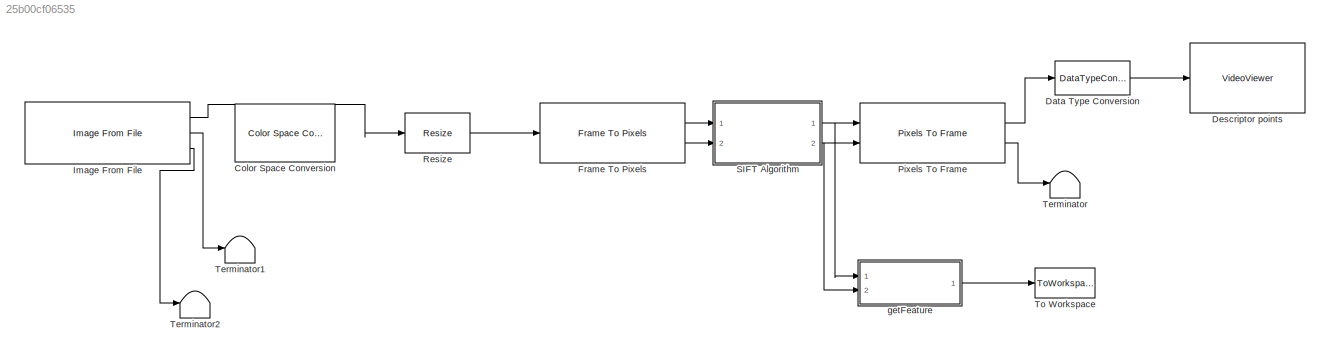
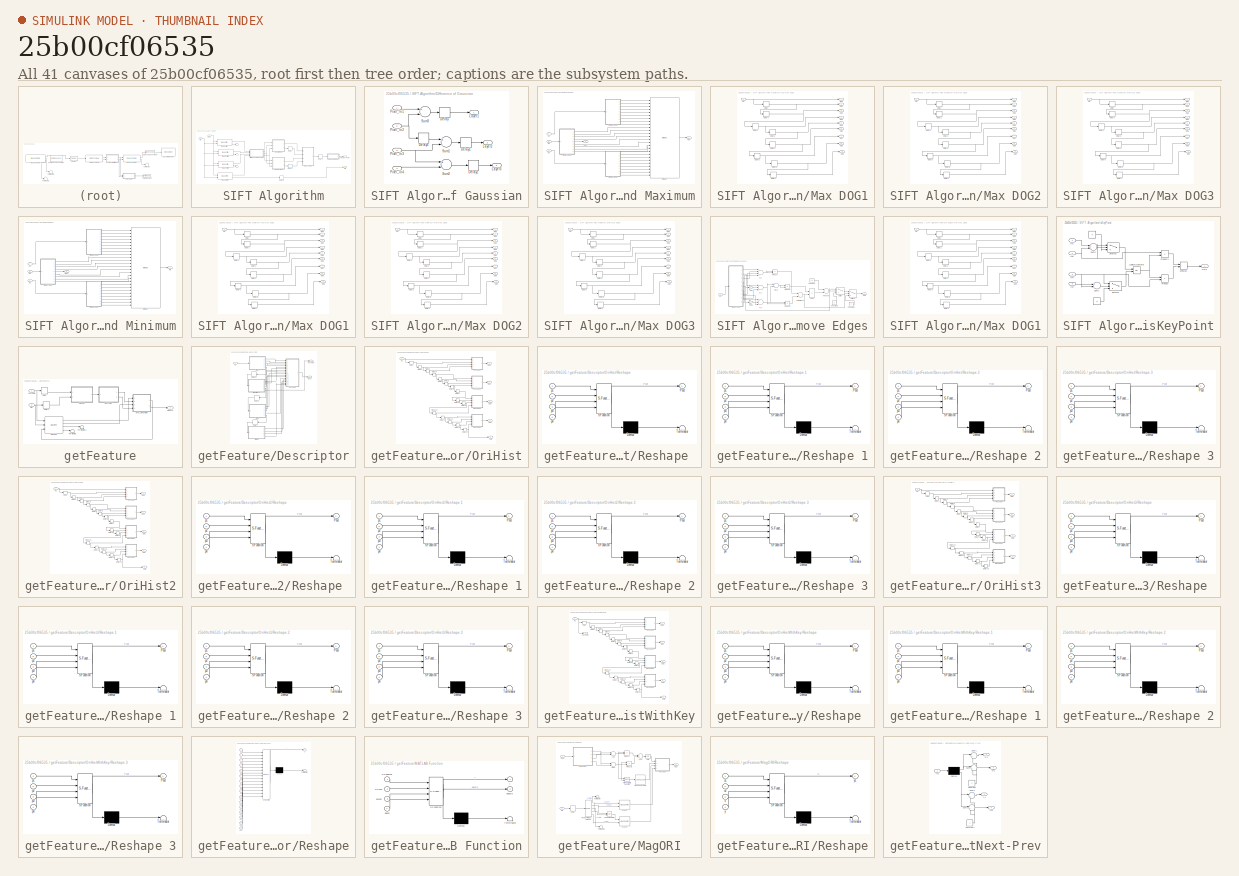
[diagram: thumbnail index - all 41 canvases of the model, root first then tree order]
MODEL slx_25b00cf06535
KIND model
CONFIG AbsTol = auto
CONFIG FixedStep = auto
CONFIG MaxStep = auto
CONFIG MinStep = auto
CONFIG RelTol = 1e-3
CONFIG SampleTimeConstraint = Unconstrained
CONFIG Solver = FixedStepDiscrete
CONFIG SolverMode = SingleTasking
CONFIG SolverName = FixedStepDiscrete
CONFIG StartTime = 0
CONFIG StopTime = 10
BLOCK [Reference] Color Space Conversion  REF=visionconversions/Color Space
 Conversion
  Commented = on
  Ports = [1, 1]
  SourceBlock = visionconversions/Color Space\n Conversion
  SourceType = Color Space Conversion
BLOCK [DataTypeConversion] Data Type Conversion
  OutDataTypeStr = double
  RndMeth = Floor
  SaturateOnIntegerOverflow = off
BLOCK [VideoViewer] Descriptor points
  FigPos = [1 822 1536 724]
  Ports = [1]
  ScopeSpecificationString = vipscopes.VideoViewerScopeCfg('CurrentConfiguration', extmgr.ConfigurationSet(extmgr.Configuration('Core','General UI',true),extmgr.Configuration('Core','Source UI',true),extmgr.Configuration('Sources','WiredSimulink',true),extmgr.Configuration('Visuals','Video',true),extmgr.Configuration('Tools','Image Navigation Tools',true,'Magnification',4),extmgr.Configuration('Tools','Image Tool',true),extmg...<+91ch>
  colormapValue = gray(256)
BLOCK [Reference] Frame To Pixels  REF=visionhdlio/Frame To Pixels
  Ports = [1, 2]
  SourceBlock = visionhdlio/Frame To Pixels
  SourceType = Frame To Pixels
BLOCK [Reference] Image From File  REF=visionsources/Image From File
  Ports = [0, 3]
  SourceBlock = visionsources/Image From File
  SourceType = Image From File
  Tag = vipblks_nd
BLOCK [Reference] Pixels To Frame  REF=visionhdlio/Pixels To Frame
  Ports = [2, 2]
  SourceBlock = visionhdlio/Pixels To Frame
  SourceType = Pixels To Frame
BLOCK [Reference] Resize  REF=visiongeotforms/Resize
  Ports = [1, 1]
  SourceBlock = visiongeotforms/Resize
  SourceType = Resize
BLOCK [SubSystem] SIFT Algorithm
  Ports = [2, 2]
  RequestExecContextInheritance = off
  Variant = off
BLOCK [Terminator] SIFT Algorithm/ 
BLOCK [Inport] SIFT Algorithm/Ctrl
  IconDisplay = Port number
  Port = 2
BLOCK [Outport] SIFT Algorithm/Ctrl1
  IconDisplay = Port number
  Port = 2
BLOCK [Delay] SIFT Algorithm/Delay
  DelayLength = 323
  InitialCondition = 0
  InputPortMap = u0
  Ports = [1, 1]
BLOCK [Delay] SIFT Algorithm/Delay1
  DelayLength = 323
  InitialCondition = 0
  InputPortMap = u0
  Ports = [1, 1]
BLOCK [Delay] SIFT Algorithm/Delay2
  DelayLength = 1
  InitialCondition = 0
  InputPortMap = u0
  Ports = [1, 1]
BLOCK [Delay] SIFT Algorithm/Delay3
  DelayLength = 1373
  InitialCondition = 0
  InputPortMap = u0
  Ports = [1, 1]
BLOCK [SubSystem] SIFT Algorithm/Difference of Gaussian
  Ports = [4, 3]
  RequestExecContextInheritance = off
  Variant = off
BLOCK [Delay] SIFT Algorithm/Difference of Gaussian/Delay
  DelayLength = 13
  InitialCondition = 0
  InputPortMap = u0
  Ports = [1, 1]
BLOCK [Delay] SIFT Algorithm/Difference of Gaussian/Delay1
  DelayLength = 1
  InitialCondition = 0
  InputPortMap = u0
  Ports = [1, 1]
BLOCK [Delay] SIFT Algorithm/Difference of Gaussian/Delay2
  DelayLength = 1
  InitialCondition = 0
  InputPortMap = u0
  Ports = [1, 1]
BLOCK [Delay] SIFT Algorithm/Difference of Gaussian/Delay3
  DelayLength = 12
  InitialCondition = 0
  InputPortMap = u0
  Ports = [1, 1]
BLOCK [Outport] SIFT Algorithm/Difference of Gaussian/Layer1
  IconDisplay = Port number
BLOCK [Outport] SIFT Algorithm/Difference of Gaussian/Layer2
  IconDisplay = Port number
  Port = 2
BLOCK [Outport] SIFT Algorithm/Difference of Gaussian/Layer3
  IconDisplay = Port number
  Port = 3
BLOCK [Inport] SIFT Algorithm/Difference of Gaussian/Pixel_In1
  IconDisplay = Port number
BLOCK [Inport] SIFT Algorithm/Difference of Gaussian/Pixel_In2
  IconDisplay = Port number
  Port = 2
BLOCK [Inport] SIFT Algorithm/Difference of Gaussian/Pixel_In3
  IconDisplay = Port number
  Port = 3
BLOCK [Inport] SIFT Algorithm/Difference of Gaussian/Pixel_In4
  IconDisplay = Port number
  Port = 4
BLOCK [Sum] SIFT Algorithm/Difference of Gaussian/Sum1
  InputSameDT = off
  Inputs = +-
  OutDataTypeStr = Inherit: Inherit via internal rule
  Ports = [2, 1]
  RndMeth = Simplest
  SaturateOnIntegerOverflow = off
BLOCK [Sum] SIFT Algorithm/Difference of Gaussian/Sum2
  InputSameDT = off
  Inputs = +-
  OutDataTypeStr = Inherit: Inherit via internal rule
  Ports = [2, 1]
  RndMeth = Simplest
  SaturateOnIntegerOverflow = off
BLOCK [Sum] SIFT Algorithm/Difference of Gaussian/Sum3
  InputSameDT = off
  Inputs = +-
  OutDataTypeStr = Inherit: Inherit via internal rule
  Ports = [2, 1]
  RndMeth = Simplest
  SaturateOnIntegerOverflow = off
BLOCK [Outport] SIFT Algorithm/FinalKeyPoint
  IconDisplay = Port number
BLOCK [SubSystem] SIFT Algorithm/Find Maximum
  Ports = [3, 2]
  RequestExecContextInheritance = off
  Variant = off
BLOCK [Inport] SIFT Algorithm/Find Maximum/In1
  IconDisplay = Port number
BLOCK [Inport] SIFT Algorithm/Find Maximum/In2
  IconDisplay = Port number
  Port = 2
BLOCK [Inport] SIFT Algorithm/Find Maximum/In3
  IconDisplay = Port number
  Port = 3
BLOCK [Outport] SIFT Algorithm/Find Maximum/Max
  IconDisplay = Port number
BLOCK [SubSystem] SIFT Algorithm/Find Maximum/Min//Max DOG1
  Ports = [1, 9]
  RequestExecContextInheritance = off
  Variant = off
BLOCK [Delay] SIFT Algorithm/Find Maximum/Min//Max DOG1/Delay
  DelayLength = 1
  InitialCondition = 0
  InputPortMap = u0
  Ports = [1, 1]
BLOCK [Delay] SIFT Algorithm/Find Maximum/Min//Max DOG1/Delay1
  DelayLength = 1
  InitialCondition = 0
  InputPortMap = u0
  Ports = [1, 1]
BLOCK [Delay] SIFT Algorithm/Find Maximum/Min//Max DOG1/Delay2
  DelayLength = 320
  InitialCondition = 0
  InputPortMap = u0
  Ports = [1, 1]
BLOCK [Delay] SIFT Algorithm/Find Maximum/Min//Max DOG1/Delay3
  DelayLength = 1
  InitialCondition = 0
  InputPortMap = u0
  Ports = [1, 1]
BLOCK [Delay] SIFT Algorithm/Find Maximum/Min//Max DOG1/Delay4
  DelayLength = 1
  InitialCondition = 0
  InputPortMap = u0
  Ports = [1, 1]
BLOCK [Delay] SIFT Algorithm/Find Maximum/Min//Max DOG1/Delay5
  DelayLength = 320
  InitialCondition = 0
  InputPortMap = u0
  Ports = [1, 1]
BLOCK [Delay] SIFT Algorithm/Find Maximum/Min//Max DOG1/Delay6
  DelayLength = 1
  InitialCondition = 0
  InputPortMap = u0
  Ports = [1, 1]
BLOCK [Delay] SIFT Algorithm/Find Maximum/Min//Max DOG1/Delay7
  DelayLength = 1
  InitialCondition = 0
  InputPortMap = u0
  Ports = [1, 1]
BLOCK [Inport] SIFT Algorithm/Find Maximum/Min//Max DOG1/In1
  IconDisplay = Port number
BLOCK [Outport] SIFT Algorithm/Find Maximum/Min//Max DOG1/Out1
  IconDisplay = Port number
BLOCK [Outport] SIFT Algorithm/Find Maximum/Min//Max DOG1/Out2
  IconDisplay = Port number
  Port = 2
BLOCK [Outport] SIFT Algorithm/Find Maximum/Min//Max DOG1/Out3
  IconDisplay = Port number
  Port = 3
BLOCK [Outport] SIFT Algorithm/Find Maximum/Min//Max DOG1/Out4
  IconDisplay = Port number
  Port = 4
BLOCK [Outport] SIFT Algorithm/Find Maximum/Min//Max DOG1/Out5
  IconDisplay = Port number
  Port = 5
BLOCK [Outport] SIFT Algorithm/Find Maximum/Min//Max DOG1/Out6
  IconDisplay = Port number
  Port = 6
BLOCK [Outport] SIFT Algorithm/Find Maximum/Min//Max DOG1/Out7
  IconDisplay = Port number
  Port = 7
BLOCK [Outport] SIFT Algorithm/Find Maximum/Min//Max DOG1/Out8
  IconDisplay = Port number
  Port = 8
BLOCK [Outport] SIFT Algorithm/Find Maximum/Min//Max DOG1/Out9
  IconDisplay = Port number
  Port = 9
BLOCK [SubSystem] SIFT Algorithm/Find Maximum/Min//Max DOG2
  Ports = [1, 9]
  RequestExecContextInheritance = off
  Variant = off
BLOCK [Delay] SIFT Algorithm/Find Maximum/Min//Max DOG2/Delay
  DelayLength = 1
  InitialCondition = 0
  InputPortMap = u0
  Ports = [1, 1]
BLOCK [Delay] SIFT Algorithm/Find Maximum/Min//Max DOG2/Delay1
  DelayLength = 1
  InitialCondition = 0
  InputPortMap = u0
  Ports = [1, 1]
BLOCK [Delay] SIFT Algorithm/Find Maximum/Min//Max DOG2/Delay2
  DelayLength = 320
  InitialCondition = 0
  InputPortMap = u0
  Ports = [1, 1]
BLOCK [Delay] SIFT Algorithm/Find Maximum/Min//Max DOG2/Delay3
  DelayLength = 1
  InitialCondition = 0
  InputPortMap = u0
  Ports = [1, 1]
BLOCK [Delay] SIFT Algorithm/Find Maximum/Min//Max DOG2/Delay4
  DelayLength = 1
  InitialCondition = 0
  InputPortMap = u0
  Ports = [1, 1]
BLOCK [Delay] SIFT Algorithm/Find Maximum/Min//Max DOG2/Delay5
  DelayLength = 320
  InitialCondition = 0
  InputPortMap = u0
  Ports = [1, 1]
BLOCK [Delay] SIFT Algorithm/Find Maximum/Min//Max DOG2/Delay6
  DelayLength = 1
  InitialCondition = 0
  InputPortMap = u0
  Ports = [1, 1]
BLOCK [Delay] SIFT Algorithm/Find Maximum/Min//Max DOG2/Delay7
  DelayLength = 1
  InitialCondition = 0
  InputPortMap = u0
  Ports = [1, 1]
BLOCK [Inport] SIFT Algorithm/Find Maximum/Min//Max DOG2/In1
  IconDisplay = Port number
BLOCK [Outport] SIFT Algorithm/Find Maximum/Min//Max DOG2/Out1
  IconDisplay = Port number
BLOCK [Outport] SIFT Algorithm/Find Maximum/Min//Max DOG2/Out2
  IconDisplay = Port number
  Port = 2
BLOCK [Outport] SIFT Algorithm/Find Maximum/Min//Max DOG2/Out3
  IconDisplay = Port number
  Port = 3
BLOCK [Outport] SIFT Algorithm/Find Maximum/Min//Max DOG2/Out4
  IconDisplay = Port number
  Port = 4
BLOCK [Outport] SIFT Algorithm/Find Maximum/Min//Max DOG2/Out5
  IconDisplay = Port number
  Port = 5
BLOCK [Outport] SIFT Algorithm/Find Maximum/Min//Max DOG2/Out6
  IconDisplay = Port number
  Port = 6
BLOCK [Outport] SIFT Algorithm/Find Maximum/Min//Max DOG2/Out7
  IconDisplay = Port number
  Port = 7
BLOCK [Outport] SIFT Algorithm/Find Maximum/Min//Max DOG2/Out8
  IconDisplay = Port number
  Port = 8
BLOCK [Outport] SIFT Algorithm/Find Maximum/Min//Max DOG2/Out9
  IconDisplay = Port number
  Port = 9
BLOCK [SubSystem] SIFT Algorithm/Find Maximum/Min//Max DOG3
  Ports = [1, 9]
  RequestExecContextInheritance = off
  Variant = off
BLOCK [Delay] SIFT Algorithm/Find Maximum/Min//Max DOG3/Delay
  DelayLength = 1
  InitialCondition = 0
  InputPortMap = u0
  Ports = [1, 1]
BLOCK [Delay] SIFT Algorithm/Find Maximum/Min//Max DOG3/Delay1
  DelayLength = 1
  InitialCondition = 0
  InputPortMap = u0
  Ports = [1, 1]
BLOCK [Delay] SIFT Algorithm/Find Maximum/Min//Max DOG3/Delay2
  DelayLength = 320
  InitialCondition = 0
  InputPortMap = u0
  Ports = [1, 1]
BLOCK [Delay] SIFT Algorithm/Find Maximum/Min//Max DOG3/Delay3
  DelayLength = 1
  InitialCondition = 0
  InputPortMap = u0
  Ports = [1, 1]
BLOCK [Delay] SIFT Algorithm/Find Maximum/Min//Max DOG3/Delay4
  DelayLength = 1
  InitialCondition = 0
  InputPortMap = u0
  Ports = [1, 1]
BLOCK [Delay] SIFT Algorithm/Find Maximum/Min//Max DOG3/Delay5
  DelayLength = 320
  InitialCondition = 0
  InputPortMap = u0
  Ports = [1, 1]
BLOCK [Delay] SIFT Algorithm/Find Maximum/Min//Max DOG3/Delay6
  DelayLength = 1
  InitialCondition = 0
  InputPortMap = u0
  Ports = [1, 1]
BLOCK [Delay] SIFT Algorithm/Find Maximum/Min//Max DOG3/Delay7
  DelayLength = 1
  InitialCondition = 0
  InputPortMap = u0
  Ports = [1, 1]
BLOCK [Inport] SIFT Algorithm/Find Maximum/Min//Max DOG3/In1
  IconDisplay = Port number
BLOCK [Outport] SIFT Algorithm/Find Maximum/Min//Max DOG3/Out1
  IconDisplay = Port number
BLOCK [Outport] SIFT Algorithm/Find Maximum/Min//Max DOG3/Out2
  IconDisplay = Port number
  Port = 2
BLOCK [Outport] SIFT Algorithm/Find Maximum/Min//Max DOG3/Out3
  IconDisplay = Port number
  Port = 3
BLOCK [Outport] SIFT Algorithm/Find Maximum/Min//Max DOG3/Out4
  IconDisplay = Port number
  Port = 4
BLOCK [Outport] SIFT Algorithm/Find Maximum/Min//Max DOG3/Out5
  IconDisplay = Port number
  Port = 5
BLOCK [Outport] SIFT Algorithm/Find Maximum/Min//Max DOG3/Out6
  IconDisplay = Port number
  Port = 6
BLOCK [Outport] SIFT Algorithm/Find Maximum/Min//Max DOG3/Out7
  IconDisplay = Port number
  Port = 7
BLOCK [Outport] SIFT Algorithm/Find Maximum/Min//Max DOG3/Out8
  IconDisplay = Port number
  Port = 8
BLOCK [Outport] SIFT Algorithm/Find Maximum/Min//Max DOG3/Out9
  IconDisplay = Port number
  Port = 9
BLOCK [MinMax] SIFT Algorithm/Find Maximum/MinMax
  Function = max
  InputSameDT = off
  Inputs = 26
  Ports = [26, 1]
  SaturateOnIntegerOverflow = off
BLOCK [Outport] SIFT Algorithm/Find Maximum/Pixel
  IconDisplay = Port number
  Port = 2
BLOCK [SubSystem] SIFT Algorithm/Find Minimum
  Ports = [3, 2]
  RequestExecContextInheritance = off
  Variant = off
BLOCK [Inport] SIFT Algorithm/Find Minimum/In1
  IconDisplay = Port number
BLOCK [Inport] SIFT Algorithm/Find Minimum/In2
  IconDisplay = Port number
  Port = 2
BLOCK [Inport] SIFT Algorithm/Find Minimum/In3
  IconDisplay = Port number
  Port = 3
BLOCK [Outport] SIFT Algorithm/Find Minimum/Min
  IconDisplay = Port number
BLOCK [SubSystem] SIFT Algorithm/Find Minimum/Min//Max DOG1
  Ports = [1, 9]
  RequestExecContextInheritance = off
  Variant = off
BLOCK [Delay] SIFT Algorithm/Find Minimum/Min//Max DOG1/Delay
  DelayLength = 1
  InitialCondition = 0
  InputPortMap = u0
  Ports = [1, 1]
BLOCK [Delay] SIFT Algorithm/Find Minimum/Min//Max DOG1/Delay1
  DelayLength = 1
  InitialCondition = 0
  InputPortMap = u0
  Ports = [1, 1]
BLOCK [Delay] SIFT Algorithm/Find Minimum/Min//Max DOG1/Delay2
  DelayLength = 320
  InitialCondition = 0
  InputPortMap = u0
  Ports = [1, 1]
BLOCK [Delay] SIFT Algorithm/Find Minimum/Min//Max DOG1/Delay3
  DelayLength = 1
  InitialCondition = 0
  InputPortMap = u0
  Ports = [1, 1]
BLOCK [Delay] SIFT Algorithm/Find Minimum/Min//Max DOG1/Delay4
  DelayLength = 1
  InitialCondition = 0
  InputPortMap = u0
  Ports = [1, 1]
BLOCK [Delay] SIFT Algorithm/Find Minimum/Min//Max DOG1/Delay5
  DelayLength = 320
  InitialCondition = 0
  InputPortMap = u0
  Ports = [1, 1]
BLOCK [Delay] SIFT Algorithm/Find Minimum/Min//Max DOG1/Delay6
  DelayLength = 1
  InitialCondition = 0
  InputPortMap = u0
  Ports = [1, 1]
BLOCK [Delay] SIFT Algorithm/Find Minimum/Min//Max DOG1/Delay7
  DelayLength = 1
  InitialCondition = 0
  InputPortMap = u0
  Ports = [1, 1]
BLOCK [Inport] SIFT Algorithm/Find Minimum/Min//Max DOG1/In1
  IconDisplay = Port number
BLOCK [Outport] SIFT Algorithm/Find Minimum/Min//Max DOG1/Out1
  IconDisplay = Port number
BLOCK [Outport] SIFT Algorithm/Find Minimum/Min//Max DOG1/Out2
  IconDisplay = Port number
  Port = 2
BLOCK [Outport] SIFT Algorithm/Find Minimum/Min//Max DOG1/Out3
  IconDisplay = Port number
  Port = 3
BLOCK [Outport] SIFT Algorithm/Find Minimum/Min//Max DOG1/Out4
  IconDisplay = Port number
  Port = 4
BLOCK [Outport] SIFT Algorithm/Find Minimum/Min//Max DOG1/Out5
  IconDisplay = Port number
  Port = 5
BLOCK [Outport] SIFT Algorithm/Find Minimum/Min//Max DOG1/Out6
  IconDisplay = Port number
  Port = 6
BLOCK [Outport] SIFT Algorithm/Find Minimum/Min//Max DOG1/Out7
  IconDisplay = Port number
  Port = 7
BLOCK [Outport] SIFT Algorithm/Find Minimum/Min//Max DOG1/Out8
  IconDisplay = Port number
  Port = 8
BLOCK [Outport] SIFT Algorithm/Find Minimum/Min//Max DOG1/Out9
  IconDisplay = Port number
  Port = 9
BLOCK [SubSystem] SIFT Algorithm/Find Minimum/Min//Max DOG2
  Ports = [1, 9]
  RequestExecContextInheritance = off
  Variant = off
BLOCK [Delay] SIFT Algorithm/Find Minimum/Min//Max DOG2/Delay
  DelayLength = 1
  InitialCondition = 0
  InputPortMap = u0
  Ports = [1, 1]
BLOCK [Delay] SIFT Algorithm/Find Minimum/Min//Max DOG2/Delay1
  DelayLength = 1
  InitialCondition = 0
  InputPortMap = u0
  Ports = [1, 1]
BLOCK [Delay] SIFT Algorithm/Find Minimum/Min//Max DOG2/Delay2
  DelayLength = 320
  InitialCondition = 0
  InputPortMap = u0
  Ports = [1, 1]
BLOCK [Delay] SIFT Algorithm/Find Minimum/Min//Max DOG2/Delay3
  DelayLength = 1
  InitialCondition = 0
  InputPortMap = u0
  Ports = [1, 1]
BLOCK [Delay] SIFT Algorithm/Find Minimum/Min//Max DOG2/Delay4
  DelayLength = 1
  InitialCondition = 0
  InputPortMap = u0
  Ports = [1, 1]
BLOCK [Delay] SIFT Algorithm/Find Minimum/Min//Max DOG2/Delay5
  DelayLength = 320
  InitialCondition = 0
  InputPortMap = u0
  Ports = [1, 1]
BLOCK [Delay] SIFT Algorithm/Find Minimum/Min//Max DOG2/Delay6
  DelayLength = 1
  InitialCondition = 0
  InputPortMap = u0
  Ports = [1, 1]
BLOCK [Delay] SIFT Algorithm/Find Minimum/Min//Max DOG2/Delay7
  DelayLength = 1
  InitialCondition = 0
  InputPortMap = u0
  Ports = [1, 1]
BLOCK [Inport] SIFT Algorithm/Find Minimum/Min//Max DOG2/In1
  IconDisplay = Port number
BLOCK [Outport] SIFT Algorithm/Find Minimum/Min//Max DOG2/Out1
  IconDisplay = Port number
BLOCK [Outport] SIFT Algorithm/Find Minimum/Min//Max DOG2/Out2
  IconDisplay = Port number
  Port = 2
BLOCK [Outport] SIFT Algorithm/Find Minimum/Min//Max DOG2/Out3
  IconDisplay = Port number
  Port = 3
BLOCK [Outport] SIFT Algorithm/Find Minimum/Min//Max DOG2/Out4
  IconDisplay = Port number
  Port = 4
BLOCK [Outport] SIFT Algorithm/Find Minimum/Min//Max DOG2/Out5
  IconDisplay = Port number
  Port = 5
BLOCK [Outport] SIFT Algorithm/Find Minimum/Min//Max DOG2/Out6
  IconDisplay = Port number
  Port = 6
BLOCK [Outport] SIFT Algorithm/Find Minimum/Min//Max DOG2/Out7
  IconDisplay = Port number
  Port = 7
BLOCK [Outport] SIFT Algorithm/Find Minimum/Min//Max DOG2/Out8
  IconDisplay = Port number
  Port = 8
BLOCK [Outport] SIFT Algorithm/Find Minimum/Min//Max DOG2/Out9
  IconDisplay = Port number
  Port = 9
BLOCK [SubSystem] SIFT Algorithm/Find Minimum/Min//Max DOG3
  Ports = [1, 9]
  RequestExecContextInheritance = off
  Variant = off
BLOCK [Delay] SIFT Algorithm/Find Minimum/Min//Max DOG3/Delay
  DelayLength = 1
  InitialCondition = 0
  InputPortMap = u0
  Ports = [1, 1]
BLOCK [Delay] SIFT Algorithm/Find Minimum/Min//Max DOG3/Delay1
  DelayLength = 1
  InitialCondition = 0
  InputPortMap = u0
  Ports = [1, 1]
BLOCK [Delay] SIFT Algorithm/Find Minimum/Min//Max DOG3/Delay2
  DelayLength = 320
  InitialCondition = 0
  InputPortMap = u0
  Ports = [1, 1]
BLOCK [Delay] SIFT Algorithm/Find Minimum/Min//Max DOG3/Delay3
  DelayLength = 1
  InitialCondition = 0
  InputPortMap = u0
  Ports = [1, 1]
BLOCK [Delay] SIFT Algorithm/Find Minimum/Min//Max DOG3/Delay4
  DelayLength = 1
  InitialCondition = 0
  InputPortMap = u0
  Ports = [1, 1]
BLOCK [Delay] SIFT Algorithm/Find Minimum/Min//Max DOG3/Delay5
  DelayLength = 320
  InitialCondition = 0
  InputPortMap = u0
  Ports = [1, 1]
BLOCK [Delay] SIFT Algorithm/Find Minimum/Min//Max DOG3/Delay6
  DelayLength = 1
  InitialCondition = 0
  InputPortMap = u0
  Ports = [1, 1]
BLOCK [Delay] SIFT Algorithm/Find Minimum/Min//Max DOG3/Delay7
  DelayLength = 1
  InitialCondition = 0
  InputPortMap = u0
  Ports = [1, 1]
BLOCK [Inport] SIFT Algorithm/Find Minimum/Min//Max DOG3/In1
  IconDisplay = Port number
BLOCK [Outport] SIFT Algorithm/Find Minimum/Min//Max DOG3/Out1
  IconDisplay = Port number
BLOCK [Outport] SIFT Algorithm/Find Minimum/Min//Max DOG3/Out2
  IconDisplay = Port number
  Port = 2
BLOCK [Outport] SIFT Algorithm/Find Minimum/Min//Max DOG3/Out3
  IconDisplay = Port number
  Port = 3
BLOCK [Outport] SIFT Algorithm/Find Minimum/Min//Max DOG3/Out4
  IconDisplay = Port number
  Port = 4
BLOCK [Outport] SIFT Algorithm/Find Minimum/Min//Max DOG3/Out5
  IconDisplay = Port number
  Port = 5
BLOCK [Outport] SIFT Algorithm/Find Minimum/Min//Max DOG3/Out6
  IconDisplay = Port number
  Port = 6
BLOCK [Outport] SIFT Algorithm/Find Minimum/Min//Max DOG3/Out7
  IconDisplay = Port number
  Port = 7
BLOCK [Outport] SIFT Algorithm/Find Minimum/Min//Max DOG3/Out8
  IconDisplay = Port number
  Port = 8
BLOCK [Outport] SIFT Algorithm/Find Minimum/Min//Max DOG3/Out9
  IconDisplay = Port number
  Port = 9
BLOCK [MinMax] SIFT Algorithm/Find Minimum/MinMax
  InputSameDT = off
  Inputs = 26
  Ports = [26, 1]
  SaturateOnIntegerOverflow = off
BLOCK [Outport] SIFT Algorithm/Find Minimum/Pixel
  IconDisplay = Port number
  Port = 2
BLOCK [Reference] SIFT Algorithm/Image Filter  REF=visionhdlfilter/Image Filter
  Ports = [2, 2]
  SourceBlock = visionhdlfilter/Image Filter
  SourceType = Image Filter
BLOCK [Reference] SIFT Algorithm/Image Filter1  REF=visionhdlfilter/Image Filter
  Ports = [2, 2]
  SourceBlock = visionhdlfilter/Image Filter
  SourceType = Image Filter
BLOCK [Reference] SIFT Algorithm/Image Filter2  REF=visionhdlfilter/Image Filter
  Ports = [2, 2]
  SourceBlock = visionhdlfilter/Image Filter
  SourceType = Image Filter
BLOCK [Reference] SIFT Algorithm/Image Filter3  REF=visionhdlfilter/Image Filter
  Ports = [2, 2]
  SourceBlock = visionhdlfilter/Image Filter
  SourceType = Image Filter
BLOCK [Inport] SIFT Algorithm/Pixel
  IconDisplay = Port number
BLOCK [SubSystem] SIFT Algorithm/Remove Edges
  Ports = [1, 1]
  RequestExecContextInheritance = off
  Variant = off
BLOCK [Constant] SIFT Algorithm/Remove Edges/Constant
  Value = 10
BLOCK [Constant] SIFT Algorithm/Remove Edges/Constant1
  Value = 0
BLOCK [Constant] SIFT Algorithm/Remove Edges/Constant2
  Value = 0
BLOCK [Sum] SIFT Algorithm/Remove Edges/Determinant
  InputSameDT = off
  Inputs = -+
  OutDataTypeStr = uint8
  Ports = [2, 1]
  RndMeth = Simplest
  SaturateOnIntegerOverflow = off
BLOCK [Product] SIFT Algorithm/Remove Edges/Divide
  InputSameDT = off
  Inputs = */
  OutDataTypeStr = Inherit: Inherit via internal rule
  Ports = [2, 1]
  RndMeth = Simplest
BLOCK [Sum] SIFT Algorithm/Remove Edges/Fxx
  InputSameDT = off
  Inputs = +-+
  OutDataTypeStr = Inherit: Inherit via internal rule
  Ports = [3, 1]
  RndMeth = Simplest
  SaturateOnIntegerOverflow = off
BLOCK [Sum] SIFT Algorithm/Remove Edges/Fxy
  InputSameDT = off
  Inputs = +--+
  OutDataTypeStr = Inherit: Inherit via internal rule
  Ports = [4, 1]
  SaturateOnIntegerOverflow = off
BLOCK [Sum] SIFT Algorithm/Remove Edges/Fyy
  InputSameDT = off
  Inputs = +-+
  OutDataTypeStr = Inherit: Inherit via internal rule
  Ports = [3, 1]
  RndMeth = Simplest
  SaturateOnIntegerOverflow = off
BLOCK [Gain] SIFT Algorithm/Remove Edges/Gain
  Gain = 2
  OutDataTypeStr = Inherit: Inherit via internal rule
  ParamDataTypeStr = Inherit: Inherit via internal rule
  RndMeth = Simplest
  SaturateOnIntegerOverflow = off
BLOCK [Gain] SIFT Algorithm/Remove Edges/Gain1
  Gain = 2
  OutDataTypeStr = Inherit: Inherit via internal rule
  ParamDataTypeStr = Inherit: Inherit via internal rule
  RndMeth = Simplest
  SaturateOnIntegerOverflow = off
BLOCK [Inport] SIFT Algorithm/Remove Edges/In1
  IconDisplay = Port number
BLOCK [SubSystem] SIFT Algorithm/Remove Edges/Min//Max DOG1
  Ports = [1, 9]
  RequestExecContextInheritance = off
  Variant = off
BLOCK [Delay] SIFT Algorithm/Remove Edges/Min//Max DOG1/Delay
  DelayLength = 1
  InitialCondition = 0
  InputPortMap = u0
  Ports = [1, 1]
BLOCK [Delay] SIFT Algorithm/Remove Edges/Min//Max DOG1/Delay1
  DelayLength = 1
  InitialCondition = 0
  InputPortMap = u0
  Ports = [1, 1]
BLOCK [Delay] SIFT Algorithm/Remove Edges/Min//Max DOG1/Delay2
  DelayLength = 320
  InitialCondition = 0
  InputPortMap = u0
  Ports = [1, 1]
BLOCK [Delay] SIFT Algorithm/Remove Edges/Min//Max DOG1/Delay3
  DelayLength = 1
  InitialCondition = 0
  InputPortMap = u0
  Ports = [1, 1]
BLOCK [Delay] SIFT Algorithm/Remove Edges/Min//Max DOG1/Delay4
  DelayLength = 1
  InitialCondition = 0
  InputPortMap = u0
  Ports = [1, 1]
BLOCK [Delay] SIFT Algorithm/Remove Edges/Min//Max DOG1/Delay5
  DelayLength = 320
  InitialCondition = 0
  InputPortMap = u0
  Ports = [1, 1]
BLOCK [Delay] SIFT Algorithm/Remove Edges/Min//Max DOG1/Delay6
  DelayLength = 1
  InitialCondition = 0
  InputPortMap = u0
  Ports = [1, 1]
BLOCK [Delay] SIFT Algorithm/Remove Edges/Min//Max DOG1/Delay7
  DelayLength = 1
  InitialCondition = 0
  InputPortMap = u0
  Ports = [1, 1]
BLOCK [Inport] SIFT Algorithm/Remove Edges/Min//Max DOG1/In1
  IconDisplay = Port number
BLOCK [Outport] SIFT Algorithm/Remove Edges/Min//Max DOG1/Out1
  IconDisplay = Port number
BLOCK [Outport] SIFT Algorithm/Remove Edges/Min//Max DOG1/Out2
  IconDisplay = Port number
  Port = 2
BLOCK [Outport] SIFT Algorithm/Remove Edges/Min//Max DOG1/Out3
  IconDisplay = Port number
  Port = 3
BLOCK [Outport] SIFT Algorithm/Remove Edges/Min//Max DOG1/Out4
  IconDisplay = Port number
  Port = 4
BLOCK [Outport] SIFT Algorithm/Remove Edges/Min//Max DOG1/Out5
  IconDisplay = Port number
  Port = 5
BLOCK [Outport] SIFT Algorithm/Remove Edges/Min//Max DOG1/Out6
  IconDisplay = Port number
  Port = 6
BLOCK [Outport] SIFT Algorithm/Remove Edges/Min//Max DOG1/Out7
  IconDisplay = Port number
  Port = 7
BLOCK [Outport] SIFT Algorithm/Remove Edges/Min//Max DOG1/Out8
  IconDisplay = Port number
  Port = 8
BLOCK [Outport] SIFT Algorithm/Remove Edges/Min//Max DOG1/Out9
  IconDisplay = Port number
  Port = 9
BLOCK [Outport] SIFT Algorithm/Remove Edges/Out1
  IconDisplay = Port number
BLOCK [Product] SIFT Algorithm/Remove Edges/Product
  InputSameDT = off
  OutDataTypeStr = Inherit: Inherit via internal rule
  Ports = [2, 1]
  RndMeth = Floor
  SaturateOnIntegerOverflow = off
BLOCK [Product] SIFT Algorithm/Remove Edges/Product1
  InputSameDT = off
  OutDataTypeStr = Inherit: Inherit via internal rule
  Ports = [2, 1]
  RndMeth = Simplest
  SaturateOnIntegerOverflow = off
BLOCK [Product] SIFT Algorithm/Remove Edges/Product2
  InputSameDT = off
  OutDataTypeStr = Inherit: Inherit via internal rule
  Ports = [2, 1]
  RndMeth = Simplest
  SaturateOnIntegerOverflow = off
BLOCK [Switch] SIFT Algorithm/Remove Edges/Switch
  InputSameDT = off
  RndMeth = Simplest
  SaturateOnIntegerOverflow = off
BLOCK [Switch] SIFT Algorithm/Remove Edges/Switch1
  InputSameDT = off
  RndMeth = Simplest
  SaturateOnIntegerOverflow = off
BLOCK [Sum] SIFT Algorithm/Remove Edges/Threshold
  InputSameDT = off
  Inputs = +-
  OutDataTypeStr = uint8
  Ports = [2, 1]
  RndMeth = Simplest
  SaturateOnIntegerOverflow = off
BLOCK [Sum] SIFT Algorithm/Remove Edges/Trace
  InputSameDT = off
  OutDataTypeStr = uint8
  Ports = [2, 1]
  RndMeth = Simplest
  SaturateOnIntegerOverflow = off
BLOCK [SubSystem] SIFT Algorithm/isKeyPoint
  Ports = [4, 1]
  RequestExecContextInheritance = off
  Variant = off
BLOCK [Constant] SIFT Algorithm/isKeyPoint/ 
  Value = 0
BLOCK [Inport] SIFT Algorithm/isKeyPoint/In1
  IconDisplay = Port number
BLOCK [Inport] SIFT Algorithm/isKeyPoint/In2
  IconDisplay = Port number
  Port = 2
BLOCK [Inport] SIFT Algorithm/isKeyPoint/In3
  IconDisplay = Port number
  Port = 3
BLOCK [Inport] SIFT Algorithm/isKeyPoint/In4
  IconDisplay = Port number
  Port = 4
BLOCK [Logic] SIFT Algorithm/isKeyPoint/Logical Operator
  AllPortsSameDT = off
  Operator = OR
  OutDataTypeStr = boolean
  Ports = [2, 1]
BLOCK [MinMax] SIFT Algorithm/isKeyPoint/MinMax
  Function = max
  InputSameDT = off
  Inputs = 2
  Ports = [2, 1]
  SaturateOnIntegerOverflow = off
BLOCK [Outport] SIFT Algorithm/isKeyPoint/Out1
  IconDisplay = Port number
BLOCK [Product] SIFT Algorithm/isKeyPoint/Product
  InputSameDT = off
  OutDataTypeStr = Inherit: Inherit via internal rule
  Ports = [2, 1]
  RndMeth = Floor
  SaturateOnIntegerOverflow = off
BLOCK [Product] SIFT Algorithm/isKeyPoint/Product1
  InputSameDT = off
  OutDataTypeStr = Inherit: Inherit via internal rule
  Ports = [2, 1]
  RndMeth = Floor
  SaturateOnIntegerOverflow = off
BLOCK [Sum] SIFT Algorithm/isKeyPoint/Sum1
  InputSameDT = off
  Inputs = +-
  OutDataTypeStr = Inherit: Inherit via internal rule
  Ports = [2, 1]
  SaturateOnIntegerOverflow = off
BLOCK [Sum] SIFT Algorithm/isKeyPoint/Sum2
  InputSameDT = off
  Inputs = +-
  OutDataTypeStr = Inherit: Inherit via internal rule
  Ports = [2, 1]
  SaturateOnIntegerOverflow = off
BLOCK [Switch] SIFT Algorithm/isKeyPoint/Switch1
  InputSameDT = off
  SaturateOnIntegerOverflow = off
BLOCK [Switch] SIFT Algorithm/isKeyPoint/Switch2
  InputSameDT = off
  SaturateOnIntegerOverflow = off
BLOCK [Terminator] Terminator
BLOCK [Terminator] Terminator1
BLOCK [Terminator] Terminator2
BLOCK [ToWorkspace] To Workspace
  Commented = on
  MaxDataPoints = inf
  Ports = [1]
  SampleTime = -1
  SaveFormat = Timeseries
  VariableName = Descrs
BLOCK [SubSystem] getFeature
  Commented = on
  Ports = [2, 1]
  RequestExecContextInheritance = off
  Variant = off
BLOCK [Inport] getFeature/Ctrl
  IconDisplay = Port number
  Port = 2
BLOCK [Delay] getFeature/Delay
  DelayLength = 647
  InitialCondition = 0
  InputPortMap = u0
  Ports = [1, 1]
BLOCK [Delay] getFeature/Delay1
  DelayLength = 647
  InitialCondition = 0
  InputPortMap = u0
  Ports = [1, 1]
BLOCK [SubSystem] getFeature/Descriptor
  Ports = [1, 2]
  RequestExecContextInheritance = off
  Variant = off
BLOCK [Delay] getFeature/Descriptor/Delay
  DelayLength = 320
  InitialCondition = 0
  InputPortMap = u0
  Ports = [1, 1]
BLOCK [Delay] getFeature/Descriptor/Delay1
  DelayLength = 320
  InitialCondition = 0
  InputPortMap = u0
  Ports = [1, 1]
BLOCK [Delay] getFeature/Descriptor/Delay2
  DelayLength = 320
  InitialCondition = 0
  InputPortMap = u0
  Ports = [1, 1]
BLOCK [Outport] getFeature/Descriptor/Desc
  IconDisplay = Port number
  Port = 2
BLOCK [Inport] getFeature/Descriptor/In1
  IconDisplay = Port number
BLOCK [Outport] getFeature/Descriptor/KeyPoint
  IconDisplay = Port number
BLOCK [SubSystem] getFeature/Descriptor/OriHist
  Ports = [1, 5]
  RequestExecContextInheritance = off
  Variant = off
BLOCK [Delay] getFeature/Descriptor/OriHist/Delay
  DelayLength = 1
  InitialCondition = 0
  InputPortMap = u0
  Ports = [1, 1]
BLOCK [Delay] getFeature/Descriptor/OriHist/Delay1
  DelayLength = 1
  InitialCondition = 0
  InputPortMap = u0
  Ports = [1, 1]
BLOCK [Delay] getFeature/Descriptor/OriHist/Delay10
  DelayLength = 1
  InitialCondition = 0
  InputPortMap = u0
  Ports = [1, 1]
BLOCK [Delay] getFeature/Descriptor/OriHist/Delay11
  DelayLength = 1
  InitialCondition = 0
  InputPortMap = u0
  Ports = [1, 1]
BLOCK [Delay] getFeature/Descriptor/OriHist/Delay12
  DelayLength = 1
  InitialCondition = 0
  InputPortMap = u0
  Ports = [1, 1]
BLOCK [Delay] getFeature/Descriptor/OriHist/Delay13
  DelayLength = 1
  InitialCondition = 0
  InputPortMap = u0
  Ports = [1, 1]
BLOCK [Delay] getFeature/Descriptor/OriHist/Delay14
  DelayLength = 1
  InitialCondition = 0
  InputPortMap = u0
  Ports = [1, 1]
BLOCK [Delay] getFeature/Descriptor/OriHist/Delay2
  DelayLength = 1
  InitialCondition = 0
  InputPortMap = u0
  Ports = [1, 1]
BLOCK [Delay] getFeature/Descriptor/OriHist/Delay3
  DelayLength = 1
  InitialCondition = 0
  InputPortMap = u0
  Ports = [1, 1]
BLOCK [Delay] getFeature/Descriptor/OriHist/Delay4
  DelayLength = 1
  InitialCondition = 0
  InputPortMap = u0
  Ports = [1, 1]
BLOCK [Delay] getFeature/Descriptor/OriHist/Delay5
  DelayLength = 1
  InitialCondition = 0
  InputPortMap = u0
  Ports = [1, 1]
BLOCK [Delay] getFeature/Descriptor/OriHist/Delay6
  DelayLength = 1
  InitialCondition = 0
  InputPortMap = u0
  Ports = [1, 1]
BLOCK [Delay] getFeature/Descriptor/OriHist/Delay7
  DelayLength = 1
  InitialCondition = 0
  InputPortMap = u0
  Ports = [1, 1]
BLOCK [Delay] getFeature/Descriptor/OriHist/Delay8
  DelayLength = 1
  InitialCondition = 0
  InputPortMap = u0
  Ports = [1, 1]
BLOCK [Delay] getFeature/Descriptor/OriHist/Delay9
  DelayLength = 1
  InitialCondition = 0
  InputPortMap = u0
  Ports = [1, 1]
BLOCK [Inport] getFeature/Descriptor/OriHist/In1
  IconDisplay = Port number
BLOCK [Outport] getFeature/Descriptor/OriHist/Out1
  IconDisplay = Port number
BLOCK [Outport] getFeature/Descriptor/OriHist/Out2
  IconDisplay = Port number
  Port = 2
BLOCK [Outport] getFeature/Descriptor/OriHist/Out3
  IconDisplay = Port number
  Port = 3
BLOCK [Outport] getFeature/Descriptor/OriHist/Out4
  IconDisplay = Port number
  Port = 4
BLOCK [Outport] getFeature/Descriptor/OriHist/Out5
  IconDisplay = Port number
  Port = 5
BLOCK [SubSystem] getFeature/Descriptor/OriHist/Reshape 
  ErrorFcn = Stateflow.Translate.translate
  PermitHierarchicalResolution = ExplicitOnly
  Ports = [4, 1]
  RequestExecContextInheritance = off
  SFBlockType = MATLAB Function
  TreatAsAtomicUnit = on
  Variant = off
BLOCK [Demux] getFeature/Descriptor/OriHist/Reshape / Demux 
  Outputs = 1
  Ports = [1, 1]
BLOCK [S-Function] getFeature/Descriptor/OriHist/Reshape / SFunction 
  EnableBusSupport = on
  FunctionName = sf_sfun
  PortCounts = [4 2]
  Ports = [4, 2]
  SFunctionDeploymentMode = off
  Tag = Stateflow S-Function SIFT 3
BLOCK [Terminator] getFeature/Descriptor/OriHist/Reshape / Terminator 
BLOCK [Outport] getFeature/Descriptor/OriHist/Reshape /Pout
  IconDisplay = Port number
BLOCK [Inport] getFeature/Descriptor/OriHist/Reshape /p1
  IconDisplay = Port number
BLOCK [Inport] getFeature/Descriptor/OriHist/Reshape /p2
  IconDisplay = Port number
  Port = 2
BLOCK [Inport] getFeature/Descriptor/OriHist/Reshape /p3
  IconDisplay = Port number
  Port = 3
BLOCK [Inport] getFeature/Descriptor/OriHist/Reshape /p4
  IconDisplay = Port number
  Port = 4
BLOCK [SubSystem] getFeature/Descriptor/OriHist/Reshape 1
  ErrorFcn = Stateflow.Translate.translate
  PermitHierarchicalResolution = ExplicitOnly
  Ports = [4, 1]
  RequestExecContextInheritance = off
  SFBlockType = MATLAB Function
  TreatAsAtomicUnit = on
  Variant = off
BLOCK [Demux] getFeature/Descriptor/OriHist/Reshape 1/ Demux 
  Outputs = 1
  Ports = [1, 1]
BLOCK [S-Function] getFeature/Descriptor/OriHist/Reshape 1/ SFunction 
  EnableBusSupport = on
  FunctionName = sf_sfun
  PortCounts = [4 2]
  Ports = [4, 2]
  SFunctionDeploymentMode = off
  Tag = Stateflow S-Function SIFT 4
BLOCK [Terminator] getFeature/Descriptor/OriHist/Reshape 1/ Terminator 
BLOCK [Outport] getFeature/Descriptor/OriHist/Reshape 1/Pout
  IconDisplay = Port number
BLOCK [Inport] getFeature/Descriptor/OriHist/Reshape 1/p1
  IconDisplay = Port number
BLOCK [Inport] getFeature/Descriptor/OriHist/Reshape 1/p2
  IconDisplay = Port number
  Port = 2
BLOCK [Inport] getFeature/Descriptor/OriHist/Reshape 1/p3
  IconDisplay = Port number
  Port = 3
BLOCK [Inport] getFeature/Descriptor/OriHist/Reshape 1/p4
  IconDisplay = Port number
  Port = 4
BLOCK [SubSystem] getFeature/Descriptor/OriHist/Reshape 2
  ErrorFcn = Stateflow.Translate.translate
  PermitHierarchicalResolution = ExplicitOnly
  Ports = [4, 1]
  RequestExecContextInheritance = off
  SFBlockType = MATLAB Function
  TreatAsAtomicUnit = on
  Variant = off
BLOCK [Demux] getFeature/Descriptor/OriHist/Reshape 2/ Demux 
  Outputs = 1
  Ports = [1, 1]
BLOCK [S-Function] getFeature/Descriptor/OriHist/Reshape 2/ SFunction 
  EnableBusSupport = on
  FunctionName = sf_sfun
  PortCounts = [4 2]
  Ports = [4, 2]
  SFunctionDeploymentMode = off
  Tag = Stateflow S-Function SIFT 5
BLOCK [Terminator] getFeature/Descriptor/OriHist/Reshape 2/ Terminator 
BLOCK [Outport] getFeature/Descriptor/OriHist/Reshape 2/Pout
  IconDisplay = Port number
BLOCK [Inport] getFeature/Descriptor/OriHist/Reshape 2/p1
  IconDisplay = Port number
BLOCK [Inport] getFeature/Descriptor/OriHist/Reshape 2/p2
  IconDisplay = Port number
  Port = 2
BLOCK [Inport] getFeature/Descriptor/OriHist/Reshape 2/p3
  IconDisplay = Port number
  Port = 3
BLOCK [Inport] getFeature/Descriptor/OriHist/Reshape 2/p4
  IconDisplay = Port number
  Port = 4
BLOCK [SubSystem] getFeature/Descriptor/OriHist/Reshape 3
  ErrorFcn = Stateflow.Translate.translate
  PermitHierarchicalResolution = ExplicitOnly
  Ports = [4, 1]
  RequestExecContextInheritance = off
  SFBlockType = MATLAB Function
  TreatAsAtomicUnit = on
  Variant = off
BLOCK [Demux] getFeature/Descriptor/OriHist/Reshape 3/ Demux 
  Outputs = 1
  Ports = [1, 1]
BLOCK [S-Function] getFeature/Descriptor/OriHist/Reshape 3/ SFunction 
  EnableBusSupport = on
  FunctionName = sf_sfun
  PortCounts = [4 2]
  Ports = [4, 2]
  SFunctionDeploymentMode = off
  Tag = Stateflow S-Function SIFT 6
BLOCK [Terminator] getFeature/Descriptor/OriHist/Reshape 3/ Terminator 
BLOCK [Outport] getFeature/Descriptor/OriHist/Reshape 3/Pout
  IconDisplay = Port number
BLOCK [Inport] getFeature/Descriptor/OriHist/Reshape 3/p1
  IconDisplay = Port number
BLOCK [Inport] getFeature/Descriptor/OriHist/Reshape 3/p2
  IconDisplay = Port number
  Port = 2
BLOCK [Inport] getFeature/Descriptor/OriHist/Reshape 3/p3
  IconDisplay = Port number
  Port = 3
BLOCK [Inport] getFeature/Descriptor/OriHist/Reshape 3/p4
  IconDisplay = Port number
  Port = 4
BLOCK [SubSystem] getFeature/Descriptor/OriHist2
  Ports = [1, 5]
  RequestExecContextInheritance = off
  Variant = off
BLOCK [Delay] getFeature/Descriptor/OriHist2/Delay
  DelayLength = 1
  InitialCondition = 0
  InputPortMap = u0
  Ports = [1, 1]
BLOCK [Delay] getFeature/Descriptor/OriHist2/Delay1
  DelayLength = 1
  InitialCondition = 0
  InputPortMap = u0
  Ports = [1, 1]
BLOCK [Delay] getFeature/Descriptor/OriHist2/Delay10
  DelayLength = 1
  InitialCondition = 0
  InputPortMap = u0
  Ports = [1, 1]
BLOCK [Delay] getFeature/Descriptor/OriHist2/Delay11
  DelayLength = 1
  InitialCondition = 0
  InputPortMap = u0
  Ports = [1, 1]
BLOCK [Delay] getFeature/Descriptor/OriHist2/Delay12
  DelayLength = 1
  InitialCondition = 0
  InputPortMap = u0
  Ports = [1, 1]
BLOCK [Delay] getFeature/Descriptor/OriHist2/Delay13
  DelayLength = 1
  InitialCondition = 0
  InputPortMap = u0
  Ports = [1, 1]
BLOCK [Delay] getFeature/Descriptor/OriHist2/Delay14
  DelayLength = 1
  InitialCondition = 0
  InputPortMap = u0
  Ports = [1, 1]
BLOCK [Delay] getFeature/Descriptor/OriHist2/Delay2
  DelayLength = 1
  InitialCondition = 0
  InputPortMap = u0
  Ports = [1, 1]
BLOCK [Delay] getFeature/Descriptor/OriHist2/Delay3
  DelayLength = 1
  InitialCondition = 0
  InputPortMap = u0
  Ports = [1, 1]
BLOCK [Delay] getFeature/Descriptor/OriHist2/Delay4
  DelayLength = 1
  InitialCondition = 0
  InputPortMap = u0
  Ports = [1, 1]
BLOCK [Delay] getFeature/Descriptor/OriHist2/Delay5
  DelayLength = 1
  InitialCondition = 0
  InputPortMap = u0
  Ports = [1, 1]
BLOCK [Delay] getFeature/Descriptor/OriHist2/Delay6
  DelayLength = 1
  InitialCondition = 0
  InputPortMap = u0
  Ports = [1, 1]
BLOCK [Delay] getFeature/Descriptor/OriHist2/Delay7
  DelayLength = 1
  InitialCondition = 0
  InputPortMap = u0
  Ports = [1, 1]
BLOCK [Delay] getFeature/Descriptor/OriHist2/Delay8
  DelayLength = 1
  InitialCondition = 0
  InputPortMap = u0
  Ports = [1, 1]
BLOCK [Delay] getFeature/Descriptor/OriHist2/Delay9
  DelayLength = 1
  InitialCondition = 0
  InputPortMap = u0
  Ports = [1, 1]
BLOCK [Inport] getFeature/Descriptor/OriHist2/In1
  IconDisplay = Port number
BLOCK [Outport] getFeature/Descriptor/OriHist2/Out1
  IconDisplay = Port number
BLOCK [Outport] getFeature/Descriptor/OriHist2/Out2
  IconDisplay = Port number
  Port = 2
BLOCK [Outport] getFeature/Descriptor/OriHist2/Out3
  IconDisplay = Port number
  Port = 3
BLOCK [Outport] getFeature/Descriptor/OriHist2/Out4
  IconDisplay = Port number
  Port = 4
BLOCK [Outport] getFeature/Descriptor/OriHist2/Out5
  IconDisplay = Port number
  Port = 5
BLOCK [SubSystem] getFeature/Descriptor/OriHist2/Reshape 
  ErrorFcn = Stateflow.Translate.translate
  PermitHierarchicalResolution = ExplicitOnly
  Ports = [4, 1]
  RequestExecContextInheritance = off
  SFBlockType = MATLAB Function
  TreatAsAtomicUnit = on
  Variant = off
BLOCK [Demux] getFeature/Descriptor/OriHist2/Reshape / Demux 
  Outputs = 1
  Ports = [1, 1]
BLOCK [S-Function] getFeature/Descriptor/OriHist2/Reshape / SFunction 
  EnableBusSupport = on
  FunctionName = sf_sfun
  PortCounts = [4 2]
  Ports = [4, 2]
  SFunctionDeploymentMode = off
  Tag = Stateflow S-Function SIFT 11
BLOCK [Terminator] getFeature/Descriptor/OriHist2/Reshape / Terminator 
BLOCK [Outport] getFeature/Descriptor/OriHist2/Reshape /Pout
  IconDisplay = Port number
BLOCK [Inport] getFeature/Descriptor/OriHist2/Reshape /p1
  IconDisplay = Port number
BLOCK [Inport] getFeature/Descriptor/OriHist2/Reshape /p2
  IconDisplay = Port number
  Port = 2
BLOCK [Inport] getFeature/Descriptor/OriHist2/Reshape /p3
  IconDisplay = Port number
  Port = 3
BLOCK [Inport] getFeature/Descriptor/OriHist2/Reshape /p4
  IconDisplay = Port number
  Port = 4
BLOCK [SubSystem] getFeature/Descriptor/OriHist2/Reshape 1
  ErrorFcn = Stateflow.Translate.translate
  PermitHierarchicalResolution = ExplicitOnly
  Ports = [4, 1]
  RequestExecContextInheritance = off
  SFBlockType = MATLAB Function
  TreatAsAtomicUnit = on
  Variant = off
BLOCK [Demux] getFeature/Descriptor/OriHist2/Reshape 1/ Demux 
  Outputs = 1
  Ports = [1, 1]
BLOCK [S-Function] getFeature/Descriptor/OriHist2/Reshape 1/ SFunction 
  EnableBusSupport = on
  FunctionName = sf_sfun
  PortCounts = [4 2]
  Ports = [4, 2]
  SFunctionDeploymentMode = off
  Tag = Stateflow S-Function SIFT 12
BLOCK [Terminator] getFeature/Descriptor/OriHist2/Reshape 1/ Terminator 
BLOCK [Outport] getFeature/Descriptor/OriHist2/Reshape 1/Pout
  IconDisplay = Port number
BLOCK [Inport] getFeature/Descriptor/OriHist2/Reshape 1/p1
  IconDisplay = Port number
BLOCK [Inport] getFeature/Descriptor/OriHist2/Reshape 1/p2
  IconDisplay = Port number
  Port = 2
BLOCK [Inport] getFeature/Descriptor/OriHist2/Reshape 1/p3
  IconDisplay = Port number
  Port = 3
BLOCK [Inport] getFeature/Descriptor/OriHist2/Reshape 1/p4
  IconDisplay = Port number
  Port = 4
BLOCK [SubSystem] getFeature/Descriptor/OriHist2/Reshape 2
  ErrorFcn = Stateflow.Translate.translate
  PermitHierarchicalResolution = ExplicitOnly
  Ports = [4, 1]
  RequestExecContextInheritance = off
  SFBlockType = MATLAB Function
  TreatAsAtomicUnit = on
  Variant = off
BLOCK [Demux] getFeature/Descriptor/OriHist2/Reshape 2/ Demux 
  Outputs = 1
  Ports = [1, 1]
BLOCK [S-Function] getFeature/Descriptor/OriHist2/Reshape 2/ SFunction 
  EnableBusSupport = on
  FunctionName = sf_sfun
  PortCounts = [4 2]
  Ports = [4, 2]
  SFunctionDeploymentMode = off
  Tag = Stateflow S-Function SIFT 13
BLOCK [Terminator] getFeature/Descriptor/OriHist2/Reshape 2/ Terminator 
BLOCK [Outport] getFeature/Descriptor/OriHist2/Reshape 2/Pout
  IconDisplay = Port number
BLOCK [Inport] getFeature/Descriptor/OriHist2/Reshape 2/p1
  IconDisplay = Port number
BLOCK [Inport] getFeature/Descriptor/OriHist2/Reshape 2/p2
  IconDisplay = Port number
  Port = 2
BLOCK [Inport] getFeature/Descriptor/OriHist2/Reshape 2/p3
  IconDisplay = Port number
  Port = 3
BLOCK [Inport] getFeature/Descriptor/OriHist2/Reshape 2/p4
  IconDisplay = Port number
  Port = 4
BLOCK [SubSystem] getFeature/Descriptor/OriHist2/Reshape 3
  ErrorFcn = Stateflow.Translate.translate
  PermitHierarchicalResolution = ExplicitOnly
  Ports = [4, 1]
  RequestExecContextInheritance = off
  SFBlockType = MATLAB Function
  TreatAsAtomicUnit = on
  Variant = off
BLOCK [Demux] getFeature/Descriptor/OriHist2/Reshape 3/ Demux 
  Outputs = 1
  Ports = [1, 1]
BLOCK [S-Function] getFeature/Descriptor/OriHist2/Reshape 3/ SFunction 
  EnableBusSupport = on
  FunctionName = sf_sfun
  PortCounts = [4 2]
  Ports = [4, 2]
  SFunctionDeploymentMode = off
  Tag = Stateflow S-Function SIFT 14
BLOCK [Terminator] getFeature/Descriptor/OriHist2/Reshape 3/ Terminator 
BLOCK [Outport] getFeature/Descriptor/OriHist2/Reshape 3/Pout
  IconDisplay = Port number
BLOCK [Inport] getFeature/Descriptor/OriHist2/Reshape 3/p1
  IconDisplay = Port number
BLOCK [Inport] getFeature/Descriptor/OriHist2/Reshape 3/p2
  IconDisplay = Port number
  Port = 2
BLOCK [Inport] getFeature/Descriptor/OriHist2/Reshape 3/p3
  IconDisplay = Port number
  Port = 3
BLOCK [Inport] getFeature/Descriptor/OriHist2/Reshape 3/p4
  IconDisplay = Port number
  Port = 4
BLOCK [SubSystem] getFeature/Descriptor/OriHist3
  Ports = [1, 4]
  RequestExecContextInheritance = off
  Variant = off
BLOCK [Delay] getFeature/Descriptor/OriHist3/Delay
  DelayLength = 1
  InitialCondition = 0
  InputPortMap = u0
  Ports = [1, 1]
BLOCK [Delay] getFeature/Descriptor/OriHist3/Delay1
  DelayLength = 1
  InitialCondition = 0
  InputPortMap = u0
  Ports = [1, 1]
BLOCK [Delay] getFeature/Descriptor/OriHist3/Delay10
  DelayLength = 1
  InitialCondition = 0
  InputPortMap = u0
  Ports = [1, 1]
BLOCK [Delay] getFeature/Descriptor/OriHist3/Delay11
  DelayLength = 1
  InitialCondition = 0
  InputPortMap = u0
  Ports = [1, 1]
BLOCK [Delay] getFeature/Descriptor/OriHist3/Delay12
  DelayLength = 1
  InitialCondition = 0
  InputPortMap = u0
  Ports = [1, 1]
BLOCK [Delay] getFeature/Descriptor/OriHist3/Delay13
  DelayLength = 1
  InitialCondition = 0
  InputPortMap = u0
  Ports = [1, 1]
BLOCK [Delay] getFeature/Descriptor/OriHist3/Delay14
  DelayLength = 1
  InitialCondition = 0
  InputPortMap = u0
  Ports = [1, 1]
BLOCK [Delay] getFeature/Descriptor/OriHist3/Delay2
  DelayLength = 1
  InitialCondition = 0
  InputPortMap = u0
  Ports = [1, 1]
BLOCK [Delay] getFeature/Descriptor/OriHist3/Delay3
  DelayLength = 1
  InitialCondition = 0
  InputPortMap = u0
  Ports = [1, 1]
BLOCK [Delay] getFeature/Descriptor/OriHist3/Delay4
  DelayLength = 1
  InitialCondition = 0
  InputPortMap = u0
  Ports = [1, 1]
BLOCK [Delay] getFeature/Descriptor/OriHist3/Delay5
  DelayLength = 1
  InitialCondition = 0
  InputPortMap = u0
  Ports = [1, 1]
BLOCK [Delay] getFeature/Descriptor/OriHist3/Delay6
  DelayLength = 1
  InitialCondition = 0
  InputPortMap = u0
  Ports = [1, 1]
BLOCK [Delay] getFeature/Descriptor/OriHist3/Delay7
  DelayLength = 1
  InitialCondition = 0
  InputPortMap = u0
  Ports = [1, 1]
BLOCK [Delay] getFeature/Descriptor/OriHist3/Delay8
  DelayLength = 1
  InitialCondition = 0
  InputPortMap = u0
  Ports = [1, 1]
BLOCK [Delay] getFeature/Descriptor/OriHist3/Delay9
  DelayLength = 1
  InitialCondition = 0
  InputPortMap = u0
  Ports = [1, 1]
BLOCK [Inport] getFeature/Descriptor/OriHist3/In1
  IconDisplay = Port number
BLOCK [Outport] getFeature/Descriptor/OriHist3/Out1
  IconDisplay = Port number
BLOCK [Outport] getFeature/Descriptor/OriHist3/Out2
  IconDisplay = Port number
  Port = 2
BLOCK [Outport] getFeature/Descriptor/OriHist3/Out3
  IconDisplay = Port number
  Port = 3
BLOCK [Outport] getFeature/Descriptor/OriHist3/Out4
  IconDisplay = Port number
  Port = 4
BLOCK [SubSystem] getFeature/Descriptor/OriHist3/Reshape 
  ErrorFcn = Stateflow.Translate.translate
  PermitHierarchicalResolution = ExplicitOnly
  Ports = [4, 1]
  RequestExecContextInheritance = off
  SFBlockType = MATLAB Function
  TreatAsAtomicUnit = on
  Variant = off
BLOCK [Demux] getFeature/Descriptor/OriHist3/Reshape / Demux 
  Outputs = 1
  Ports = [1, 1]
BLOCK [S-Function] getFeature/Descriptor/OriHist3/Reshape / SFunction 
  EnableBusSupport = on
  FunctionName = sf_sfun
  PortCounts = [4 2]
  Ports = [4, 2]
  SFunctionDeploymentMode = off
  Tag = Stateflow S-Function SIFT 15
BLOCK [Terminator] getFeature/Descriptor/OriHist3/Reshape / Terminator 
BLOCK [Outport] getFeature/Descriptor/OriHist3/Reshape /Pout
  IconDisplay = Port number
BLOCK [Inport] getFeature/Descriptor/OriHist3/Reshape /p1
  IconDisplay = Port number
BLOCK [Inport] getFeature/Descriptor/OriHist3/Reshape /p2
  IconDisplay = Port number
  Port = 2
BLOCK [Inport] getFeature/Descriptor/OriHist3/Reshape /p3
  IconDisplay = Port number
  Port = 3
BLOCK [Inport] getFeature/Descriptor/OriHist3/Reshape /p4
  IconDisplay = Port number
  Port = 4
BLOCK [SubSystem] getFeature/Descriptor/OriHist3/Reshape 1
  ErrorFcn = Stateflow.Translate.translate
  PermitHierarchicalResolution = ExplicitOnly
  Ports = [4, 1]
  RequestExecContextInheritance = off
  SFBlockType = MATLAB Function
  TreatAsAtomicUnit = on
  Variant = off
BLOCK [Demux] getFeature/Descriptor/OriHist3/Reshape 1/ Demux 
  Outputs = 1
  Ports = [1, 1]
BLOCK [S-Function] getFeature/Descriptor/OriHist3/Reshape 1/ SFunction 
  EnableBusSupport = on
  FunctionName = sf_sfun
  PortCounts = [4 2]
  Ports = [4, 2]
  SFunctionDeploymentMode = off
  Tag = Stateflow S-Function SIFT 16
BLOCK [Terminator] getFeature/Descriptor/OriHist3/Reshape 1/ Terminator 
BLOCK [Outport] getFeature/Descriptor/OriHist3/Reshape 1/Pout
  IconDisplay = Port number
BLOCK [Inport] getFeature/Descriptor/OriHist3/Reshape 1/p1
  IconDisplay = Port number
BLOCK [Inport] getFeature/Descriptor/OriHist3/Reshape 1/p2
  IconDisplay = Port number
  Port = 2
BLOCK [Inport] getFeature/Descriptor/OriHist3/Reshape 1/p3
  IconDisplay = Port number
  Port = 3
BLOCK [Inport] getFeature/Descriptor/OriHist3/Reshape 1/p4
  IconDisplay = Port number
  Port = 4
BLOCK [SubSystem] getFeature/Descriptor/OriHist3/Reshape 2
  ErrorFcn = Stateflow.Translate.translate
  PermitHierarchicalResolution = ExplicitOnly
  Ports = [4, 1]
  RequestExecContextInheritance = off
  SFBlockType = MATLAB Function
  TreatAsAtomicUnit = on
  Variant = off
BLOCK [Demux] getFeature/Descriptor/OriHist3/Reshape 2/ Demux 
  Outputs = 1
  Ports = [1, 1]
BLOCK [S-Function] getFeature/Descriptor/OriHist3/Reshape 2/ SFunction 
  EnableBusSupport = on
  FunctionName = sf_sfun
  PortCounts = [4 2]
  Ports = [4, 2]
  SFunctionDeploymentMode = off
  Tag = Stateflow S-Function SIFT 17
BLOCK [Terminator] getFeature/Descriptor/OriHist3/Reshape 2/ Terminator 
BLOCK [Outport] getFeature/Descriptor/OriHist3/Reshape 2/Pout
  IconDisplay = Port number
BLOCK [Inport] getFeature/Descriptor/OriHist3/Reshape 2/p1
  IconDisplay = Port number
BLOCK [Inport] getFeature/Descriptor/OriHist3/Reshape 2/p2
  IconDisplay = Port number
  Port = 2
BLOCK [Inport] getFeature/Descriptor/OriHist3/Reshape 2/p3
  IconDisplay = Port number
  Port = 3
BLOCK [Inport] getFeature/Descriptor/OriHist3/Reshape 2/p4
  IconDisplay = Port number
  Port = 4
BLOCK [SubSystem] getFeature/Descriptor/OriHist3/Reshape 3
  ErrorFcn = Stateflow.Translate.translate
  PermitHierarchicalResolution = ExplicitOnly
  Ports = [4, 1]
  RequestExecContextInheritance = off
  SFBlockType = MATLAB Function
  TreatAsAtomicUnit = on
  Variant = off
BLOCK [Demux] getFeature/Descriptor/OriHist3/Reshape 3/ Demux 
  Outputs = 1
  Ports = [1, 1]
BLOCK [S-Function] getFeature/Descriptor/OriHist3/Reshape 3/ SFunction 
  EnableBusSupport = on
  FunctionName = sf_sfun
  PortCounts = [4 2]
  Ports = [4, 2]
  SFunctionDeploymentMode = off
  Tag = Stateflow S-Function SIFT 18
BLOCK [Terminator] getFeature/Descriptor/OriHist3/Reshape 3/ Terminator 
BLOCK [Outport] getFeature/Descriptor/OriHist3/Reshape 3/Pout
  IconDisplay = Port number
BLOCK [Inport] getFeature/Descriptor/OriHist3/Reshape 3/p1
  IconDisplay = Port number
BLOCK [Inport] getFeature/Descriptor/OriHist3/Reshape 3/p2
  IconDisplay = Port number
  Port = 2
BLOCK [Inport] getFeature/Descriptor/OriHist3/Reshape 3/p3
  IconDisplay = Port number
  Port = 3
BLOCK [Inport] getFeature/Descriptor/OriHist3/Reshape 3/p4
  IconDisplay = Port number
  Port = 4
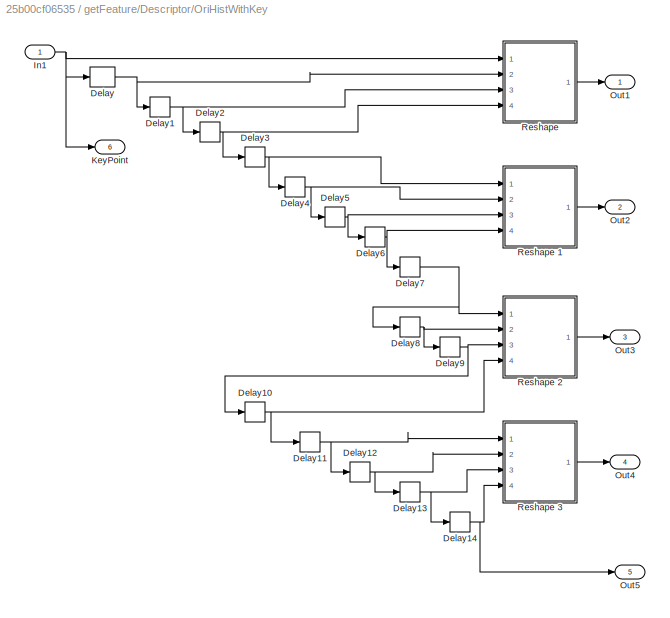
BLOCK [SubSystem] getFeature/Descriptor/OriHistWithKey
  Ports = [1, 6]
  RequestExecContextInheritance = off
  Variant = off
BLOCK [Delay] getFeature/Descriptor/OriHistWithKey/Delay
  DelayLength = 1
  InitialCondition = 0
  InputPortMap = u0
  Ports = [1, 1]
BLOCK [Delay] getFeature/Descriptor/OriHistWithKey/Delay1
  DelayLength = 1
  InitialCondition = 0
  InputPortMap = u0
  Ports = [1, 1]
BLOCK [Delay] getFeature/Descriptor/OriHistWithKey/Delay10
  DelayLength = 1
  InitialCondition = 0
  InputPortMap = u0
  Ports = [1, 1]
BLOCK [Delay] getFeature/Descriptor/OriHistWithKey/Delay11
  DelayLength = 1
  InitialCondition = 0
  InputPortMap = u0
  Ports = [1, 1]
BLOCK [Delay] getFeature/Descriptor/OriHistWithKey/Delay12
  DelayLength = 1
  InitialCondition = 0
  InputPortMap = u0
  Ports = [1, 1]
BLOCK [Delay] getFeature/Descriptor/OriHistWithKey/Delay13
  DelayLength = 1
  InitialCondition = 0
  InputPortMap = u0
  Ports = [1, 1]
BLOCK [Delay] getFeature/Descriptor/OriHistWithKey/Delay14
  DelayLength = 1
  InitialCondition = 0
  InputPortMap = u0
  Ports = [1, 1]
BLOCK [Delay] getFeature/Descriptor/OriHistWithKey/Delay2
  DelayLength = 1
  InitialCondition = 0
  InputPortMap = u0
  Ports = [1, 1]
BLOCK [Delay] getFeature/Descriptor/OriHistWithKey/Delay3
  DelayLength = 1
  InitialCondition = 0
  InputPortMap = u0
  Ports = [1, 1]
BLOCK [Delay] getFeature/Descriptor/OriHistWithKey/Delay4
  DelayLength = 1
  InitialCondition = 0
  InputPortMap = u0
  Ports = [1, 1]
BLOCK [Delay] getFeature/Descriptor/OriHistWithKey/Delay5
  DelayLength = 1
  InitialCondition = 0
  InputPortMap = u0
  Ports = [1, 1]
BLOCK [Delay] getFeature/Descriptor/OriHistWithKey/Delay6
  DelayLength = 1
  InitialCondition = 0
  InputPortMap = u0
  Ports = [1, 1]
BLOCK [Delay] getFeature/Descriptor/OriHistWithKey/Delay7
  DelayLength = 1
  InitialCondition = 0
  InputPortMap = u0
  Ports = [1, 1]
BLOCK [Delay] getFeature/Descriptor/OriHistWithKey/Delay8
  DelayLength = 1
  InitialCondition = 0
  InputPortMap = u0
  Ports = [1, 1]
BLOCK [Delay] getFeature/Descriptor/OriHistWithKey/Delay9
  DelayLength = 1
  InitialCondition = 0
  InputPortMap = u0
  Ports = [1, 1]
BLOCK [Inport] getFeature/Descriptor/OriHistWithKey/In1
  IconDisplay = Port number
BLOCK [Outport] getFeature/Descriptor/OriHistWithKey/KeyPoint
  IconDisplay = Port number
  Port = 6
BLOCK [Outport] getFeature/Descriptor/OriHistWithKey/Out1
  IconDisplay = Port number
BLOCK [Outport] getFeature/Descriptor/OriHistWithKey/Out2
  IconDisplay = Port number
  Port = 2
BLOCK [Outport] getFeature/Descriptor/OriHistWithKey/Out3
  IconDisplay = Port number
  Port = 3
BLOCK [Outport] getFeature/Descriptor/OriHistWithKey/Out4
  IconDisplay = Port number
  Port = 4
BLOCK [Outport] getFeature/Descriptor/OriHistWithKey/Out5
  IconDisplay = Port number
  Port = 5
BLOCK [SubSystem] getFeature/Descriptor/OriHistWithKey/Reshape 
  ErrorFcn = Stateflow.Translate.translate
  PermitHierarchicalResolution = ExplicitOnly
  Ports = [4, 1]
  RequestExecContextInheritance = off
  SFBlockType = MATLAB Function
  TreatAsAtomicUnit = on
  Variant = off
BLOCK [Demux] getFeature/Descriptor/OriHistWithKey/Reshape / Demux 
  Outputs = 1
  Ports = [1, 1]
BLOCK [S-Function] getFeature/Descriptor/OriHistWithKey/Reshape / SFunction 
  EnableBusSupport = on
  FunctionName = sf_sfun
  PortCounts = [4 2]
  Ports = [4, 2]
  SFunctionDeploymentMode = off
  Tag = Stateflow S-Function SIFT 7
BLOCK [Terminator] getFeature/Descriptor/OriHistWithKey/Reshape / Terminator 
BLOCK [Outport] getFeature/Descriptor/OriHistWithKey/Reshape /Pout
  IconDisplay = Port number
BLOCK [Inport] getFeature/Descriptor/OriHistWithKey/Reshape /p1
  IconDisplay = Port number
BLOCK [Inport] getFeature/Descriptor/OriHistWithKey/Reshape /p2
  IconDisplay = Port number
  Port = 2
BLOCK [Inport] getFeature/Descriptor/OriHistWithKey/Reshape /p3
  IconDisplay = Port number
  Port = 3
BLOCK [Inport] getFeature/Descriptor/OriHistWithKey/Reshape /p4
  IconDisplay = Port number
  Port = 4
BLOCK [SubSystem] getFeature/Descriptor/OriHistWithKey/Reshape 1
  ErrorFcn = Stateflow.Translate.translate
  PermitHierarchicalResolution = ExplicitOnly
  Ports = [4, 1]
  RequestExecContextInheritance = off
  SFBlockType = MATLAB Function
  TreatAsAtomicUnit = on
  Variant = off
BLOCK [Demux] getFeature/Descriptor/OriHistWithKey/Reshape 1/ Demux 
  Outputs = 1
  Ports = [1, 1]
BLOCK [S-Function] getFeature/Descriptor/OriHistWithKey/Reshape 1/ SFunction 
  EnableBusSupport = on
  FunctionName = sf_sfun
  PortCounts = [4 2]
  Ports = [4, 2]
  SFunctionDeploymentMode = off
  Tag = Stateflow S-Function SIFT 8
BLOCK [Terminator] getFeature/Descriptor/OriHistWithKey/Reshape 1/ Terminator 
BLOCK [Outport] getFeature/Descriptor/OriHistWithKey/Reshape 1/Pout
  IconDisplay = Port number
BLOCK [Inport] getFeature/Descriptor/OriHistWithKey/Reshape 1/p1
  IconDisplay = Port number
BLOCK [Inport] getFeature/Descriptor/OriHistWithKey/Reshape 1/p2
  IconDisplay = Port number
  Port = 2
BLOCK [Inport] getFeature/Descriptor/OriHistWithKey/Reshape 1/p3
  IconDisplay = Port number
  Port = 3
BLOCK [Inport] getFeature/Descriptor/OriHistWithKey/Reshape 1/p4
  IconDisplay = Port number
  Port = 4
BLOCK [SubSystem] getFeature/Descriptor/OriHistWithKey/Reshape 2
  ErrorFcn = Stateflow.Translate.translate
  PermitHierarchicalResolution = ExplicitOnly
  Ports = [4, 1]
  RequestExecContextInheritance = off
  SFBlockType = MATLAB Function
  TreatAsAtomicUnit = on
  Variant = off
BLOCK [Demux] getFeature/Descriptor/OriHistWithKey/Reshape 2/ Demux 
  Outputs = 1
  Ports = [1, 1]
BLOCK [S-Function] getFeature/Descriptor/OriHistWithKey/Reshape 2/ SFunction 
  EnableBusSupport = on
  FunctionName = sf_sfun
  PortCounts = [4 2]
  Ports = [4, 2]
  SFunctionDeploymentMode = off
  Tag = Stateflow S-Function SIFT 9
BLOCK [Terminator] getFeature/Descriptor/OriHistWithKey/Reshape 2/ Terminator 
BLOCK [Outport] getFeature/Descriptor/OriHistWithKey/Reshape 2/Pout
  IconDisplay = Port number
BLOCK [Inport] getFeature/Descriptor/OriHistWithKey/Reshape 2/p1
  IconDisplay = Port number
BLOCK [Inport] getFeature/Descriptor/OriHistWithKey/Reshape 2/p2
  IconDisplay = Port number
  Port = 2
BLOCK [Inport] getFeature/Descriptor/OriHistWithKey/Reshape 2/p3
  IconDisplay = Port number
  Port = 3
BLOCK [Inport] getFeature/Descriptor/OriHistWithKey/Reshape 2/p4
  IconDisplay = Port number
  Port = 4
BLOCK [SubSystem] getFeature/Descriptor/OriHistWithKey/Reshape 3
  ErrorFcn = Stateflow.Translate.translate
  PermitHierarchicalResolution = ExplicitOnly
  Ports = [4, 1]
  RequestExecContextInheritance = off
  SFBlockType = MATLAB Function
  TreatAsAtomicUnit = on
  Variant = off
BLOCK [Demux] getFeature/Descriptor/OriHistWithKey/Reshape 3/ Demux 
  Outputs = 1
  Ports = [1, 1]
BLOCK [S-Function] getFeature/Descriptor/OriHistWithKey/Reshape 3/ SFunction 
  EnableBusSupport = on
  FunctionName = sf_sfun
  PortCounts = [4 2]
  Ports = [4, 2]
  SFunctionDeploymentMode = off
  Tag = Stateflow S-Function SIFT 10
BLOCK [Terminator] getFeature/Descriptor/OriHistWithKey/Reshape 3/ Terminator 
BLOCK [Outport] getFeature/Descriptor/OriHistWithKey/Reshape 3/Pout
  IconDisplay = Port number
BLOCK [Inport] getFeature/Descriptor/OriHistWithKey/Reshape 3/p1
  IconDisplay = Port number
BLOCK [Inport] getFeature/Descriptor/OriHistWithKey/Reshape 3/p2
  IconDisplay = Port number
  Port = 2
BLOCK [Inport] getFeature/Descriptor/OriHistWithKey/Reshape 3/p3
  IconDisplay = Port number
  Port = 3
BLOCK [Inport] getFeature/Descriptor/OriHistWithKey/Reshape 3/p4
  IconDisplay = Port number
  Port = 4
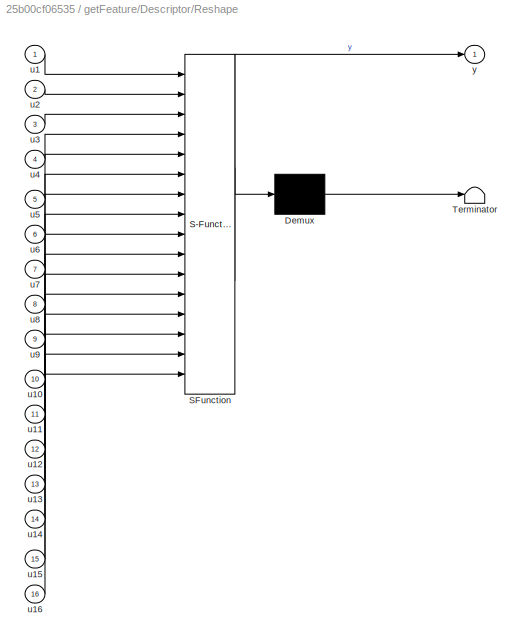
BLOCK [SubSystem] getFeature/Descriptor/Reshape
  ErrorFcn = Stateflow.Translate.translate
  PermitHierarchicalResolution = ExplicitOnly
  Ports = [16, 1]
  RequestExecContextInheritance = off
  SFBlockType = MATLAB Function
  TreatAsAtomicUnit = on
  Variant = off
BLOCK [Demux] getFeature/Descriptor/Reshape/ Demux 
  Outputs = 1
  Ports = [1, 1]
BLOCK [S-Function] getFeature/Descriptor/Reshape/ SFunction 
  EnableBusSupport = on
  FunctionName = sf_sfun
  PortCounts = [16 2]
  Ports = [16, 2]
  SFunctionDeploymentMode = off
  Tag = Stateflow S-Function SIFT 19
BLOCK [Terminator] getFeature/Descriptor/Reshape/ Terminator 
BLOCK [Inport] getFeature/Descriptor/Reshape/u1
  IconDisplay = Port number
BLOCK [Inport] getFeature/Descriptor/Reshape/u10
  IconDisplay = Port number
  Port = 10
BLOCK [Inport] getFeature/Descriptor/Reshape/u11
  IconDisplay = Port number
  Port = 11
BLOCK [Inport] getFeature/Descriptor/Reshape/u12
  IconDisplay = Port number
  Port = 12
BLOCK [Inport] getFeature/Descriptor/Reshape/u13
  IconDisplay = Port number
  Port = 13
BLOCK [Inport] getFeature/Descriptor/Reshape/u14
  IconDisplay = Port number
  Port = 14
BLOCK [Inport] getFeature/Descriptor/Reshape/u15
  IconDisplay = Port number
  Port = 15
BLOCK [Inport] getFeature/Descriptor/Reshape/u16
  IconDisplay = Port number
  Port = 16
BLOCK [Inport] getFeature/Descriptor/Reshape/u2
  IconDisplay = Port number
  Port = 2
BLOCK [Inport] getFeature/Descriptor/Reshape/u3
  IconDisplay = Port number
  Port = 3
BLOCK [Inport] getFeature/Descriptor/Reshape/u4
  IconDisplay = Port number
  Port = 4
BLOCK [Inport] getFeature/Descriptor/Reshape/u5
  IconDisplay = Port number
  Port = 5
BLOCK [Inport] getFeature/Descriptor/Reshape/u6
  IconDisplay = Port number
  Port = 6
BLOCK [Inport] getFeature/Descriptor/Reshape/u7
  IconDisplay = Port number
  Port = 7
BLOCK [Inport] getFeature/Descriptor/Reshape/u8
  IconDisplay = Port number
  Port = 8
BLOCK [Inport] getFeature/Descriptor/Reshape/u9
  IconDisplay = Port number
  Port = 9
BLOCK [Outport] getFeature/Descriptor/Reshape/y
  IconDisplay = Port number
BLOCK [Outport] getFeature/Descrs
  IconDisplay = Port number
BLOCK [Reference] getFeature/HDL FIFO  REF=hdlsllib/HDL Operations/HDL FIFO
  Ports = [3, 4]
  SourceBlock = hdlsllib/HDL Operations/HDL FIFO
  SourceType = HDL_FIFO
BLOCK [Inport] getFeature/KeyPoints
  IconDisplay = Port number
BLOCK [SubSystem] getFeature/MATLAB Function
  ErrorFcn = Stateflow.Translate.translate
  PermitHierarchicalResolution = ExplicitOnly
  Ports = [4, 2]
  RequestExecContextInheritance = off
  SFBlockType = MATLAB Function
  TreatAsAtomicUnit = on
  Variant = off
BLOCK [Demux] getFeature/MATLAB Function/ Demux 
  Outputs = 1
  Ports = [1, 1]
BLOCK [S-Function] getFeature/MATLAB Function/ SFunction 
  EnableBusSupport = on
  FunctionName = sf_sfun
  PortCounts = [4 3]
  Ports = [4, 3]
  SFunctionDeploymentMode = off
  Tag = Stateflow S-Function SIFT 2
BLOCK [Terminator] getFeature/MATLAB Function/ Terminator 
BLOCK [Inport] getFeature/MATLAB Function/KPdis
  IconDisplay = Port number
  Port = 2
BLOCK [Inport] getFeature/MATLAB Function/KPsource
  IconDisplay = Port number
BLOCK [Inport] getFeature/MATLAB Function/descr
  IconDisplay = Port number
  Port = 4
BLOCK [Outport] getFeature/MATLAB Function/descrs
  IconDisplay = Port number
  Port = 2
BLOCK [Inport] getFeature/MATLAB Function/empty
  IconDisplay = Port number
  Port = 3
BLOCK [Outport] getFeature/MATLAB Function/y
  IconDisplay = Port number
BLOCK [SubSystem] getFeature/MagORI
  Ports = [2, 1]
  RequestExecContextInheritance = off
  Variant = off
BLOCK [Lookup_n-D] getFeature/MagORI/1-D Lookup Table
  BreakpointsForDimension1 = [-5:5]
  InternalRulePriority = Speed
  NumberOfTableDimensions = 1
  Ports = [1, 1]
  RndMeth = Simplest
  Table = tanh([-5:5])
BLOCK [Sum] getFeature/MagORI/Add
  InputSameDT = off
  Inputs = -+
  OutDataTypeStr = Inherit: Inherit via internal rule
  Ports = [2, 1]
  SaturateOnIntegerOverflow = off
BLOCK [Sum] getFeature/MagORI/Add1
  InputSameDT = off
  Inputs = -+
  OutDataTypeStr = Inherit: Inherit via internal rule
  Ports = [2, 1]
  SaturateOnIntegerOverflow = off
BLOCK [Sum] getFeature/MagORI/Add2
  InputSameDT = off
  OutDataTypeStr = Inherit: Inherit via internal rule
  Ports = [2, 1]
  SaturateOnIntegerOverflow = off
BLOCK [Inport] getFeature/MagORI/Ctrl
  IconDisplay = Port number
  Port = 2
BLOCK [Delay] getFeature/MagORI/Delay
  DelayLength = 322
  InitialCondition = 0
  InputPortMap = u0
  Ports = [1, 1]
BLOCK [Logic] getFeature/MagORI/Logical Operator
  AllPortsSameDT = off
  Operator = OR
  OutDataTypeStr = boolean
  Ports = [2, 1]
BLOCK [Outport] getFeature/MagORI/Mag
  IconDisplay = Port number
BLOCK [Inport] getFeature/MagORI/Pixel
  IconDisplay = Port number
BLOCK [BusSelector] getFeature/MagORI/Pixel Control Bus Selector
  OutputSignals = hStart,hEnd,vStart,vEnd,valid
  Ports = [1, 5]
BLOCK [Product] getFeature/MagORI/Product
  InputSameDT = off
  OutDataTypeStr = Inherit: Inherit via internal rule
  Ports = [2, 1]
  RndMeth = Floor
  SaturateOnIntegerOverflow = off
BLOCK [Product] getFeature/MagORI/Product1
  InputSameDT = off
  OutDataTypeStr = Inherit: Inherit via internal rule
  Ports = [2, 1]
  RndMeth = Floor
  SaturateOnIntegerOverflow = off
BLOCK [SubSystem] getFeature/MagORI/Reshape
  ErrorFcn = Stateflow.Translate.translate
  PermitHierarchicalResolution = ExplicitOnly
  Ports = [4, 1]
  RequestExecContextInheritance = off
  SFBlockType = MATLAB Function
  TreatAsAtomicUnit = on
  Variant = off
BLOCK [Demux] getFeature/MagORI/Reshape/ Demux 
  Outputs = 1
  Ports = [1, 1]
BLOCK [S-Function] getFeature/MagORI/Reshape/ SFunction 
  EnableBusSupport = on
  FunctionName = sf_sfun
  PortCounts = [4 2]
  Ports = [4, 2]
  SFunctionDeploymentMode = off
  Tag = Stateflow S-Function SIFT 1
BLOCK [Terminator] getFeature/MagORI/Reshape/ Terminator 
BLOCK [Inport] getFeature/MagORI/Reshape/u1
  IconDisplay = Port number
BLOCK [Inport] getFeature/MagORI/Reshape/u2
  IconDisplay = Port number
  Port = 2
BLOCK [Inport] getFeature/MagORI/Reshape/x
  IconDisplay = Port number
  Port = 3
BLOCK [Inport] getFeature/MagORI/Reshape/y
  IconDisplay = Port number
  Port = 4
BLOCK [Outport] getFeature/MagORI/Reshape/y1
  IconDisplay = Port number
BLOCK [Sqrt] getFeature/MagORI/Sqrt
BLOCK [Terminator] getFeature/MagORI/Terminator
BLOCK [Terminator] getFeature/MagORI/Terminator1
BLOCK [Trigonometry] getFeature/MagORI/Trigonometric Function
  Operator = atan2
  Ports = [2, 1]
BLOCK [SubSystem] getFeature/MagORI/getNext-Prev
  Ports = [1, 4]
  RequestExecContextInheritance = off
  Variant = off
BLOCK [Constant] getFeature/MagORI/getNext-Prev/Constant
BLOCK [Constant] getFeature/MagORI/getNext-Prev/Constant1
BLOCK [Demux] getFeature/MagORI/getNext-Prev/Demux
  DisplayOption = bar
  Outputs = 2
  Ports = [1, 2]
BLOCK [Inport] getFeature/MagORI/getNext-Prev/In1
  IconDisplay = Port number
BLOCK [Sum] getFeature/MagORI/getNext-Prev/Sum
  IconShape = round
  InputSameDT = off
  Inputs = |++
  OutDataTypeStr = Inherit: Inherit via internal rule
  Ports = [2, 1]
  SaturateOnIntegerOverflow = off
BLOCK [Sum] getFeature/MagORI/getNext-Prev/Sum1
  IconShape = round
  InputSameDT = off
  Inputs = |+-
  OutDataTypeStr = Inherit: Inherit via internal rule
  Ports = [2, 1]
  SaturateOnIntegerOverflow = off
BLOCK [Sum] getFeature/MagORI/getNext-Prev/Sum2
  IconShape = round
  InputSameDT = off
  Inputs = |++
  OutDataTypeStr = Inherit: Inherit via internal rule
  Ports = [2, 1]
  SaturateOnIntegerOverflow = off
BLOCK [Sum] getFeature/MagORI/getNext-Prev/Sum3
  IconShape = round
  InputSameDT = off
  Inputs = |+-
  OutDataTypeStr = Inherit: Inherit via internal rule
  Ports = [2, 1]
  SaturateOnIntegerOverflow = off
BLOCK [Outport] getFeature/MagORI/getNext-Prev/x+1
  IconDisplay = Port number
  Port = 3
BLOCK [Outport] getFeature/MagORI/getNext-Prev/x-1
  IconDisplay = Port number
  Port = 2
BLOCK [Outport] getFeature/MagORI/getNext-Prev/y+1
  IconDisplay = Port number
  Port = 4
BLOCK [Outport] getFeature/MagORI/getNext-Prev/y-1
  IconDisplay = Port number
BLOCK [Reference] getFeature/MagORI/hcount  REF=hdlsllib/HDL Operations/HDL Counter
  Ports = [2, 1]
  SourceBlock = hdlsllib/HDL Operations/HDL Counter
  SourceType = HDL Counter
BLOCK [Reference] getFeature/MagORI/vcount  REF=hdlsllib/HDL Operations/HDL Counter
  Ports = [2, 1]
  SourceBlock = hdlsllib/HDL Operations/HDL Counter
  SourceType = HDL Counter
BLOCK [Terminator] getFeature/Terminator
BLOCK [Terminator] getFeature/Terminator1
LINE Data Type Conversion:1 -> Descriptor points:1
LINE Frame To Pixels:1 -> SIFT Algorithm:1
LINE Frame To Pixels:2 -> SIFT Algorithm:2
LINE Image From File:1 -> Resize:1
LINE Image From File:2 -> Terminator1:1
LINE Image From File:3 -> Terminator2:1
LINE Pixels To Frame:1 -> Data Type Conversion:1
LINE Pixels To Frame:2 -> Terminator:1
LINE Resize:1 -> Frame To Pixels:1
NET SIFT Algorithm/Ctrl:1 -> SIFT Algorithm/Image Filter1:2, SIFT Algorithm/Image Filter2:2, SIFT Algorithm/Image Filter3:2, SIFT Algorithm/Image Filter:2
LINE SIFT Algorithm/Delay1:1 -> SIFT Algorithm/isKeyPoint:4
LINE SIFT Algorithm/Delay2:1 -> SIFT Algorithm/Remove Edges:1
LINE SIFT Algorithm/Delay3:1 -> SIFT Algorithm/Ctrl1:1
LINE SIFT Algorithm/Delay:1 -> SIFT Algorithm/isKeyPoint:2
LINE SIFT Algorithm/Difference of Gaussian/Delay1:1 -> SIFT Algorithm/Difference of Gaussian/Layer2:1
LINE SIFT Algorithm/Difference of Gaussian/Delay2:1 -> SIFT Algorithm/Difference of Gaussian/Layer3:1
LINE SIFT Algorithm/Difference of Gaussian/Delay3:1 -> SIFT Algorithm/Difference of Gaussian/Sum1:1
LINE SIFT Algorithm/Difference of Gaussian/Delay:1 -> SIFT Algorithm/Difference of Gaussian/Layer1:1
LINE SIFT Algorithm/Difference of Gaussian/Pixel_In1:1 -> SIFT Algorithm/Difference of Gaussian/Sum3:1
NET SIFT Algorithm/Difference of Gaussian/Pixel_In2:1 -> SIFT Algorithm/Difference of Gaussian/Delay3:1, SIFT Algorithm/Difference of Gaussian/Sum3:2
NET SIFT Algorithm/Difference of Gaussian/Pixel_In3:1 -> SIFT Algorithm/Difference of Gaussian/Sum1:2, SIFT Algorithm/Difference of Gaussian/Sum2:1
LINE SIFT Algorithm/Difference of Gaussian/Pixel_In4:1 -> SIFT Algorithm/Difference of Gaussian/Sum2:2
LINE SIFT Algorithm/Difference of Gaussian/Sum1:1 -> SIFT Algorithm/Difference of Gaussian/Delay1:1
LINE SIFT Algorithm/Difference of Gaussian/Sum2:1 -> SIFT Algorithm/Difference of Gaussian/Delay2:1
LINE SIFT Algorithm/Difference of Gaussian/Sum3:1 -> SIFT Algorithm/Difference of Gaussian/Delay:1
NET SIFT Algorithm/Difference of Gaussian:1 -> SIFT Algorithm/Find Maximum:1, SIFT Algorithm/Find Minimum:1
NET SIFT Algorithm/Difference of Gaussian:2 -> SIFT Algorithm/Find Maximum:2, SIFT Algorithm/Find Minimum:2
NET SIFT Algorithm/Difference of Gaussian:3 -> SIFT Algorithm/Find Maximum:3, SIFT Algorithm/Find Minimum:3
LINE SIFT Algorithm/Find Maximum/In1:1 -> SIFT Algorithm/Find Maximum/Min//Max DOG3:1
LINE SIFT Algorithm/Find Maximum/In2:1 -> SIFT Algorithm/Find Maximum/Min//Max DOG1:1
LINE SIFT Algorithm/Find Maximum/In3:1 -> SIFT Algorithm/Find Maximum/Min//Max DOG2:1
NET SIFT Algorithm/Find Maximum/Min//Max DOG1/Delay1:1 -> SIFT Algorithm/Find Maximum/Min//Max DOG1/Delay2:1, SIFT Algorithm/Find Maximum/Min//Max DOG1/Out3:1
NET SIFT Algorithm/Find Maximum/Min//Max DOG1/Delay2:1 -> SIFT Algorithm/Find Maximum/Min//Max DOG1/Delay3:1, SIFT Algorithm/Find Maximum/Min//Max DOG1/Out4:1
NET SIFT Algorithm/Find Maximum/Min//Max DOG1/Delay3:1 -> SIFT Algorithm/Find Maximum/Min//Max DOG1/Delay4:1, SIFT Algorithm/Find Maximum/Min//Max DOG1/Out5:1
NET SIFT Algorithm/Find Maximum/Min//Max DOG1/Delay4:1 -> SIFT Algorithm/Find Maximum/Min//Max DOG1/Delay5:1, SIFT Algorithm/Find Maximum/Min//Max DOG1/Out6:1
NET SIFT Algorithm/Find Maximum/Min//Max DOG1/Delay5:1 -> SIFT Algorithm/Find Maximum/Min//Max DOG1/Delay6:1, SIFT Algorithm/Find Maximum/Min//Max DOG1/Out7:1
NET SIFT Algorithm/Find Maximum/Min//Max DOG1/Delay6:1 -> SIFT Algorithm/Find Maximum/Min//Max DOG1/Delay7:1, SIFT Algorithm/Find Maximum/Min//Max DOG1/Out8:1
LINE SIFT Algorithm/Find Maximum/Min//Max DOG1/Delay7:1 -> SIFT Algorithm/Find Maximum/Min//Max DOG1/Out9:1
NET SIFT Algorithm/Find Maximum/Min//Max DOG1/Delay:1 -> SIFT Algorithm/Find Maximum/Min//Max DOG1/Delay1:1, SIFT Algorithm/Find Maximum/Min//Max DOG1/Out2:1
NET SIFT Algorithm/Find Maximum/Min//Max DOG1/In1:1 -> SIFT Algorithm/Find Maximum/Min//Max DOG1/Delay:1, SIFT Algorithm/Find Maximum/Min//Max DOG1/Out1:1
LINE SIFT Algorithm/Find Maximum/Min//Max DOG1:1 -> SIFT Algorithm/Find Maximum/MinMax:10
LINE SIFT Algorithm/Find Maximum/Min//Max DOG1:2 -> SIFT Algorithm/Find Maximum/MinMax:11
LINE SIFT Algorithm/Find Maximum/Min//Max DOG1:3 -> SIFT Algorithm/Find Maximum/MinMax:12
LINE SIFT Algorithm/Find Maximum/Min//Max DOG1:4 -> SIFT Algorithm/Find Maximum/MinMax:13
LINE SIFT Algorithm/Find Maximum/Min//Max DOG1:5 -> SIFT Algorithm/Find Maximum/Pixel:1
LINE SIFT Algorithm/Find Maximum/Min//Max DOG1:6 -> SIFT Algorithm/Find Maximum/MinMax:14
LINE SIFT Algorithm/Find Maximum/Min//Max DOG1:7 -> SIFT Algorithm/Find Maximum/MinMax:15
LINE SIFT Algorithm/Find Maximum/Min//Max DOG1:8 -> SIFT Algorithm/Find Maximum/MinMax:16
LINE SIFT Algorithm/Find Maximum/Min//Max DOG1:9 -> SIFT Algorithm/Find Maximum/MinMax:17
NET SIFT Algorithm/Find Maximum/Min//Max DOG2/Delay1:1 -> SIFT Algorithm/Find Maximum/Min//Max DOG2/Delay2:1, SIFT Algorithm/Find Maximum/Min//Max DOG2/Out3:1
NET SIFT Algorithm/Find Maximum/Min//Max DOG2/Delay2:1 -> SIFT Algorithm/Find Maximum/Min//Max DOG2/Delay3:1, SIFT Algorithm/Find Maximum/Min//Max DOG2/Out4:1
NET SIFT Algorithm/Find Maximum/Min//Max DOG2/Delay3:1 -> SIFT Algorithm/Find Maximum/Min//Max DOG2/Delay4:1, SIFT Algorithm/Find Maximum/Min//Max DOG2/Out5:1
NET SIFT Algorithm/Find Maximum/Min//Max DOG2/Delay4:1 -> SIFT Algorithm/Find Maximum/Min//Max DOG2/Delay5:1, SIFT Algorithm/Find Maximum/Min//Max DOG2/Out6:1
NET SIFT Algorithm/Find Maximum/Min//Max DOG2/Delay5:1 -> SIFT Algorithm/Find Maximum/Min//Max DOG2/Delay6:1, SIFT Algorithm/Find Maximum/Min//Max DOG2/Out7:1
NET SIFT Algorithm/Find Maximum/Min//Max DOG2/Delay6:1 -> SIFT Algorithm/Find Maximum/Min//Max DOG2/Delay7:1, SIFT Algorithm/Find Maximum/Min//Max DOG2/Out8:1
LINE SIFT Algorithm/Find Maximum/Min//Max DOG2/Delay7:1 -> SIFT Algorithm/Find Maximum/Min//Max DOG2/Out9:1
NET SIFT Algorithm/Find Maximum/Min//Max DOG2/Delay:1 -> SIFT Algorithm/Find Maximum/Min//Max DOG2/Delay1:1, SIFT Algorithm/Find Maximum/Min//Max DOG2/Out2:1
NET SIFT Algorithm/Find Maximum/Min//Max DOG2/In1:1 -> SIFT Algorithm/Find Maximum/Min//Max DOG2/Delay:1, SIFT Algorithm/Find Maximum/Min//Max DOG2/Out1:1
LINE SIFT Algorithm/Find Maximum/Min//Max DOG2:1 -> SIFT Algorithm/Find Maximum/MinMax:18
LINE SIFT Algorithm/Find Maximum/Min//Max DOG2:2 -> SIFT Algorithm/Find Maximum/MinMax:19
LINE SIFT Algorithm/Find Maximum/Min//Max DOG2:3 -> SIFT Algorithm/Find Maximum/MinMax:20
LINE SIFT Algorithm/Find Maximum/Min//Max DOG2:4 -> SIFT Algorithm/Find Maximum/MinMax:21
LINE SIFT Algorithm/Find Maximum/Min//Max DOG2:5 -> SIFT Algorithm/Find Maximum/MinMax:22
LINE SIFT Algorithm/Find Maximum/Min//Max DOG2:6 -> SIFT Algorithm/Find Maximum/MinMax:23
LINE SIFT Algorithm/Find Maximum/Min//Max DOG2:7 -> SIFT Algorithm/Find Maximum/MinMax:24
LINE SIFT Algorithm/Find Maximum/Min//Max DOG2:8 -> SIFT Algorithm/Find Maximum/MinMax:25
LINE SIFT Algorithm/Find Maximum/Min//Max DOG2:9 -> SIFT Algorithm/Find Maximum/MinMax:26
NET SIFT Algorithm/Find Maximum/Min//Max DOG3/Delay1:1 -> SIFT Algorithm/Find Maximum/Min//Max DOG3/Delay2:1, SIFT Algorithm/Find Maximum/Min//Max DOG3/Out3:1
NET SIFT Algorithm/Find Maximum/Min//Max DOG3/Delay2:1 -> SIFT Algorithm/Find Maximum/Min//Max DOG3/Delay3:1, SIFT Algorithm/Find Maximum/Min//Max DOG3/Out4:1
NET SIFT Algorithm/Find Maximum/Min//Max DOG3/Delay3:1 -> SIFT Algorithm/Find Maximum/Min//Max DOG3/Delay4:1, SIFT Algorithm/Find Maximum/Min//Max DOG3/Out5:1
NET SIFT Algorithm/Find Maximum/Min//Max DOG3/Delay4:1 -> SIFT Algorithm/Find Maximum/Min//Max DOG3/Delay5:1, SIFT Algorithm/Find Maximum/Min//Max DOG3/Out6:1
NET SIFT Algorithm/Find Maximum/Min//Max DOG3/Delay5:1 -> SIFT Algorithm/Find Maximum/Min//Max DOG3/Delay6:1, SIFT Algorithm/Find Maximum/Min//Max DOG3/Out7:1
NET SIFT Algorithm/Find Maximum/Min//Max DOG3/Delay6:1 -> SIFT Algorithm/Find Maximum/Min//Max DOG3/Delay7:1, SIFT Algorithm/Find Maximum/Min//Max DOG3/Out8:1
LINE SIFT Algorithm/Find Maximum/Min//Max DOG3/Delay7:1 -> SIFT Algorithm/Find Maximum/Min//Max DOG3/Out9:1
NET SIFT Algorithm/Find Maximum/Min//Max DOG3/Delay:1 -> SIFT Algorithm/Find Maximum/Min//Max DOG3/Delay1:1, SIFT Algorithm/Find Maximum/Min//Max DOG3/Out2:1
NET SIFT Algorithm/Find Maximum/Min//Max DOG3/In1:1 -> SIFT Algorithm/Find Maximum/Min//Max DOG3/Delay:1, SIFT Algorithm/Find Maximum/Min//Max DOG3/Out1:1
LINE SIFT Algorithm/Find Maximum/Min//Max DOG3:1 -> SIFT Algorithm/Find Maximum/MinMax:1
LINE SIFT Algorithm/Find Maximum/Min//Max DOG3:2 -> SIFT Algorithm/Find Maximum/MinMax:2
LINE SIFT Algorithm/Find Maximum/Min//Max DOG3:3 -> SIFT Algorithm/Find Maximum/MinMax:3
LINE SIFT Algorithm/Find Maximum/Min//Max DOG3:4 -> SIFT Algorithm/Find Maximum/MinMax:4
LINE SIFT Algorithm/Find Maximum/Min//Max DOG3:5 -> SIFT Algorithm/Find Maximum/MinMax:5
LINE SIFT Algorithm/Find Maximum/Min//Max DOG3:6 -> SIFT Algorithm/Find Maximum/MinMax:6
LINE SIFT Algorithm/Find Maximum/Min//Max DOG3:7 -> SIFT Algorithm/Find Maximum/MinMax:7
LINE SIFT Algorithm/Find Maximum/Min//Max DOG3:8 -> SIFT Algorithm/Find Maximum/MinMax:8
LINE SIFT Algorithm/Find Maximum/Min//Max DOG3:9 -> SIFT Algorithm/Find Maximum/MinMax:9
LINE SIFT Algorithm/Find Maximum/MinMax:1 -> SIFT Algorithm/Find Maximum/Max:1
LINE SIFT Algorithm/Find Maximum:1 -> SIFT Algorithm/isKeyPoint:3
LINE SIFT Algorithm/Find Maximum:2 -> SIFT Algorithm/Delay1:1
LINE SIFT Algorithm/Find Minimum/In1:1 -> SIFT Algorithm/Find Minimum/Min//Max DOG3:1
LINE SIFT Algorithm/Find Minimum/In2:1 -> SIFT Algorithm/Find Minimum/Min//Max DOG1:1
LINE SIFT Algorithm/Find Minimum/In3:1 -> SIFT Algorithm/Find Minimum/Min//Max DOG2:1
NET SIFT Algorithm/Find Minimum/Min//Max DOG1/Delay1:1 -> SIFT Algorithm/Find Minimum/Min//Max DOG1/Delay2:1, SIFT Algorithm/Find Minimum/Min//Max DOG1/Out3:1
NET SIFT Algorithm/Find Minimum/Min//Max DOG1/Delay2:1 -> SIFT Algorithm/Find Minimum/Min//Max DOG1/Delay3:1, SIFT Algorithm/Find Minimum/Min//Max DOG1/Out4:1
NET SIFT Algorithm/Find Minimum/Min//Max DOG1/Delay3:1 -> SIFT Algorithm/Find Minimum/Min//Max DOG1/Delay4:1, SIFT Algorithm/Find Minimum/Min//Max DOG1/Out5:1
NET SIFT Algorithm/Find Minimum/Min//Max DOG1/Delay4:1 -> SIFT Algorithm/Find Minimum/Min//Max DOG1/Delay5:1, SIFT Algorithm/Find Minimum/Min//Max DOG1/Out6:1
NET SIFT Algorithm/Find Minimum/Min//Max DOG1/Delay5:1 -> SIFT Algorithm/Find Minimum/Min//Max DOG1/Delay6:1, SIFT Algorithm/Find Minimum/Min//Max DOG1/Out7:1
NET SIFT Algorithm/Find Minimum/Min//Max DOG1/Delay6:1 -> SIFT Algorithm/Find Minimum/Min//Max DOG1/Delay7:1, SIFT Algorithm/Find Minimum/Min//Max DOG1/Out8:1
LINE SIFT Algorithm/Find Minimum/Min//Max DOG1/Delay7:1 -> SIFT Algorithm/Find Minimum/Min//Max DOG1/Out9:1
NET SIFT Algorithm/Find Minimum/Min//Max DOG1/Delay:1 -> SIFT Algorithm/Find Minimum/Min//Max DOG1/Delay1:1, SIFT Algorithm/Find Minimum/Min//Max DOG1/Out2:1
NET SIFT Algorithm/Find Minimum/Min//Max DOG1/In1:1 -> SIFT Algorithm/Find Minimum/Min//Max DOG1/Delay:1, SIFT Algorithm/Find Minimum/Min//Max DOG1/Out1:1
LINE SIFT Algorithm/Find Minimum/Min//Max DOG1:1 -> SIFT Algorithm/Find Minimum/MinMax:10
LINE SIFT Algorithm/Find Minimum/Min//Max DOG1:2 -> SIFT Algorithm/Find Minimum/MinMax:11
LINE SIFT Algorithm/Find Minimum/Min//Max DOG1:3 -> SIFT Algorithm/Find Minimum/MinMax:12
LINE SIFT Algorithm/Find Minimum/Min//Max DOG1:4 -> SIFT Algorithm/Find Minimum/MinMax:13
LINE SIFT Algorithm/Find Minimum/Min//Max DOG1:5 -> SIFT Algorithm/Find Minimum/Pixel:1
LINE SIFT Algorithm/Find Minimum/Min//Max DOG1:6 -> SIFT Algorithm/Find Minimum/MinMax:14
LINE SIFT Algorithm/Find Minimum/Min//Max DOG1:7 -> SIFT Algorithm/Find Minimum/MinMax:15
LINE SIFT Algorithm/Find Minimum/Min//Max DOG1:8 -> SIFT Algorithm/Find Minimum/MinMax:16
LINE SIFT Algorithm/Find Minimum/Min//Max DOG1:9 -> SIFT Algorithm/Find Minimum/MinMax:17
NET SIFT Algorithm/Find Minimum/Min//Max DOG2/Delay1:1 -> SIFT Algorithm/Find Minimum/Min//Max DOG2/Delay2:1, SIFT Algorithm/Find Minimum/Min//Max DOG2/Out3:1
NET SIFT Algorithm/Find Minimum/Min//Max DOG2/Delay2:1 -> SIFT Algorithm/Find Minimum/Min//Max DOG2/Delay3:1, SIFT Algorithm/Find Minimum/Min//Max DOG2/Out4:1
NET SIFT Algorithm/Find Minimum/Min//Max DOG2/Delay3:1 -> SIFT Algorithm/Find Minimum/Min//Max DOG2/Delay4:1, SIFT Algorithm/Find Minimum/Min//Max DOG2/Out5:1
NET SIFT Algorithm/Find Minimum/Min//Max DOG2/Delay4:1 -> SIFT Algorithm/Find Minimum/Min//Max DOG2/Delay5:1, SIFT Algorithm/Find Minimum/Min//Max DOG2/Out6:1
NET SIFT Algorithm/Find Minimum/Min//Max DOG2/Delay5:1 -> SIFT Algorithm/Find Minimum/Min//Max DOG2/Delay6:1, SIFT Algorithm/Find Minimum/Min//Max DOG2/Out7:1
NET SIFT Algorithm/Find Minimum/Min//Max DOG2/Delay6:1 -> SIFT Algorithm/Find Minimum/Min//Max DOG2/Delay7:1, SIFT Algorithm/Find Minimum/Min//Max DOG2/Out8:1
LINE SIFT Algorithm/Find Minimum/Min//Max DOG2/Delay7:1 -> SIFT Algorithm/Find Minimum/Min//Max DOG2/Out9:1
NET SIFT Algorithm/Find Minimum/Min//Max DOG2/Delay:1 -> SIFT Algorithm/Find Minimum/Min//Max DOG2/Delay1:1, SIFT Algorithm/Find Minimum/Min//Max DOG2/Out2:1
NET SIFT Algorithm/Find Minimum/Min//Max DOG2/In1:1 -> SIFT Algorithm/Find Minimum/Min//Max DOG2/Delay:1, SIFT Algorithm/Find Minimum/Min//Max DOG2/Out1:1
LINE SIFT Algorithm/Find Minimum/Min//Max DOG2:1 -> SIFT Algorithm/Find Minimum/MinMax:18
LINE SIFT Algorithm/Find Minimum/Min//Max DOG2:2 -> SIFT Algorithm/Find Minimum/MinMax:19
LINE SIFT Algorithm/Find Minimum/Min//Max DOG2:3 -> SIFT Algorithm/Find Minimum/MinMax:20
LINE SIFT Algorithm/Find Minimum/Min//Max DOG2:4 -> SIFT Algorithm/Find Minimum/MinMax:21
LINE SIFT Algorithm/Find Minimum/Min//Max DOG2:5 -> SIFT Algorithm/Find Minimum/MinMax:22
LINE SIFT Algorithm/Find Minimum/Min//Max DOG2:6 -> SIFT Algorithm/Find Minimum/MinMax:23
LINE SIFT Algorithm/Find Minimum/Min//Max DOG2:7 -> SIFT Algorithm/Find Minimum/MinMax:24
LINE SIFT Algorithm/Find Minimum/Min//Max DOG2:8 -> SIFT Algorithm/Find Minimum/MinMax:25
LINE SIFT Algorithm/Find Minimum/Min//Max DOG2:9 -> SIFT Algorithm/Find Minimum/MinMax:26
NET SIFT Algorithm/Find Minimum/Min//Max DOG3/Delay1:1 -> SIFT Algorithm/Find Minimum/Min//Max DOG3/Delay2:1, SIFT Algorithm/Find Minimum/Min//Max DOG3/Out3:1
NET SIFT Algorithm/Find Minimum/Min//Max DOG3/Delay2:1 -> SIFT Algorithm/Find Minimum/Min//Max DOG3/Delay3:1, SIFT Algorithm/Find Minimum/Min//Max DOG3/Out4:1
NET SIFT Algorithm/Find Minimum/Min//Max DOG3/Delay3:1 -> SIFT Algorithm/Find Minimum/Min//Max DOG3/Delay4:1, SIFT Algorithm/Find Minimum/Min//Max DOG3/Out5:1
NET SIFT Algorithm/Find Minimum/Min//Max DOG3/Delay4:1 -> SIFT Algorithm/Find Minimum/Min//Max DOG3/Delay5:1, SIFT Algorithm/Find Minimum/Min//Max DOG3/Out6:1
NET SIFT Algorithm/Find Minimum/Min//Max DOG3/Delay5:1 -> SIFT Algorithm/Find Minimum/Min//Max DOG3/Delay6:1, SIFT Algorithm/Find Minimum/Min//Max DOG3/Out7:1
NET SIFT Algorithm/Find Minimum/Min//Max DOG3/Delay6:1 -> SIFT Algorithm/Find Minimum/Min//Max DOG3/Delay7:1, SIFT Algorithm/Find Minimum/Min//Max DOG3/Out8:1
LINE SIFT Algorithm/Find Minimum/Min//Max DOG3/Delay7:1 -> SIFT Algorithm/Find Minimum/Min//Max DOG3/Out9:1
NET SIFT Algorithm/Find Minimum/Min//Max DOG3/Delay:1 -> SIFT Algorithm/Find Minimum/Min//Max DOG3/Delay1:1, SIFT Algorithm/Find Minimum/Min//Max DOG3/Out2:1
NET SIFT Algorithm/Find Minimum/Min//Max DOG3/In1:1 -> SIFT Algorithm/Find Minimum/Min//Max DOG3/Delay:1, SIFT Algorithm/Find Minimum/Min//Max DOG3/Out1:1
LINE SIFT Algorithm/Find Minimum/Min//Max DOG3:1 -> SIFT Algorithm/Find Minimum/MinMax:1
LINE SIFT Algorithm/Find Minimum/Min//Max DOG3:2 -> SIFT Algorithm/Find Minimum/MinMax:2
LINE SIFT Algorithm/Find Minimum/Min//Max DOG3:3 -> SIFT Algorithm/Find Minimum/MinMax:3
LINE SIFT Algorithm/Find Minimum/Min//Max DOG3:4 -> SIFT Algorithm/Find Minimum/MinMax:4
LINE SIFT Algorithm/Find Minimum/Min//Max DOG3:5 -> SIFT Algorithm/Find Minimum/MinMax:5
LINE SIFT Algorithm/Find Minimum/Min//Max DOG3:6 -> SIFT Algorithm/Find Minimum/MinMax:6
LINE SIFT Algorithm/Find Minimum/Min//Max DOG3:7 -> SIFT Algorithm/Find Minimum/MinMax:7
LINE SIFT Algorithm/Find Minimum/Min//Max DOG3:8 -> SIFT Algorithm/Find Minimum/MinMax:8
LINE SIFT Algorithm/Find Minimum/Min//Max DOG3:9 -> SIFT Algorithm/Find Minimum/MinMax:9
LINE SIFT Algorithm/Find Minimum/MinMax:1 -> SIFT Algorithm/Find Minimum/Min:1
LINE SIFT Algorithm/Find Minimum:1 -> SIFT Algorithm/isKeyPoint:1
LINE SIFT Algorithm/Find Minimum:2 -> SIFT Algorithm/Delay:1
LINE SIFT Algorithm/Image Filter1:1 -> SIFT Algorithm/Difference of Gaussian:2
LINE SIFT Algorithm/Image Filter1:2 -> SIFT Algorithm/ :1
LINE SIFT Algorithm/Image Filter2:1 -> SIFT Algorithm/Difference of Gaussian:3
LINE SIFT Algorithm/Image Filter2:2 -> SIFT Algorithm/ :1
LINE SIFT Algorithm/Image Filter3:1 -> SIFT Algorithm/Difference of Gaussian:4
LINE SIFT Algorithm/Image Filter3:2 -> SIFT Algorithm/Delay3:1
LINE SIFT Algorithm/Image Filter:1 -> SIFT Algorithm/Difference of Gaussian:1
LINE SIFT Algorithm/Image Filter:2 -> SIFT Algorithm/ :1
NET SIFT Algorithm/Pixel:1 -> SIFT Algorithm/Image Filter1:1, SIFT Algorithm/Image Filter2:1, SIFT Algorithm/Image Filter3:1, SIFT Algorithm/Image Filter:1
LINE SIFT Algorithm/Remove Edges/Constant1:1 -> SIFT Algorithm/Remove Edges/Switch:3
LINE SIFT Algorithm/Remove Edges/Constant2:1 -> SIFT Algorithm/Remove Edges/Switch1:3
LINE SIFT Algorithm/Remove Edges/Constant:1 -> SIFT Algorithm/Remove Edges/Threshold:1
NET SIFT Algorithm/Remove Edges/Determinant:1 -> SIFT Algorithm/Remove Edges/Divide:2, SIFT Algorithm/Remove Edges/Switch1:2
LINE SIFT Algorithm/Remove Edges/Divide:1 -> SIFT Algorithm/Remove Edges/Threshold:2
NET SIFT Algorithm/Remove Edges/Fxx:1 -> SIFT Algorithm/Remove Edges/Product2:1, SIFT Algorithm/Remove Edges/Trace:2
NET SIFT Algorithm/Remove Edges/Fxy:1 -> SIFT Algorithm/Remove Edges/Product:1, SIFT Algorithm/Remove Edges/Product:2
NET SIFT Algorithm/Remove Edges/Fyy:1 -> SIFT Algorithm/Remove Edges/Product2:2, SIFT Algorithm/Remove Edges/Trace:1
LINE SIFT Algorithm/Remove Edges/Gain1:1 -> SIFT Algorithm/Remove Edges/Fxx:2
LINE SIFT Algorithm/Remove Edges/Gain:1 -> SIFT Algorithm/Remove Edges/Fyy:2
LINE SIFT Algorithm/Remove Edges/In1:1 -> SIFT Algorithm/Remove Edges/Min//Max DOG1:1
NET SIFT Algorithm/Remove Edges/Min//Max DOG1/Delay1:1 -> SIFT Algorithm/Remove Edges/Min//Max DOG1/Delay2:1, SIFT Algorithm/Remove Edges/Min//Max DOG1/Out3:1
NET SIFT Algorithm/Remove Edges/Min//Max DOG1/Delay2:1 -> SIFT Algorithm/Remove Edges/Min//Max DOG1/Delay3:1, SIFT Algorithm/Remove Edges/Min//Max DOG1/Out4:1
NET SIFT Algorithm/Remove Edges/Min//Max DOG1/Delay3:1 -> SIFT Algorithm/Remove Edges/Min//Max DOG1/Delay4:1, SIFT Algorithm/Remove Edges/Min//Max DOG1/Out5:1
NET SIFT Algorithm/Remove Edges/Min//Max DOG1/Delay4:1 -> SIFT Algorithm/Remove Edges/Min//Max DOG1/Delay5:1, SIFT Algorithm/Remove Edges/Min//Max DOG1/Out6:1
NET SIFT Algorithm/Remove Edges/Min//Max DOG1/Delay5:1 -> SIFT Algorithm/Remove Edges/Min//Max DOG1/Delay6:1, SIFT Algorithm/Remove Edges/Min//Max DOG1/Out7:1
NET SIFT Algorithm/Remove Edges/Min//Max DOG1/Delay6:1 -> SIFT Algorithm/Remove Edges/Min//Max DOG1/Delay7:1, SIFT Algorithm/Remove Edges/Min//Max DOG1/Out8:1
LINE SIFT Algorithm/Remove Edges/Min//Max DOG1/Delay7:1 -> SIFT Algorithm/Remove Edges/Min//Max DOG1/Out9:1
NET SIFT Algorithm/Remove Edges/Min//Max DOG1/Delay:1 -> SIFT Algorithm/Remove Edges/Min//Max DOG1/Delay1:1, SIFT Algorithm/Remove Edges/Min//Max DOG1/Out2:1
NET SIFT Algorithm/Remove Edges/Min//Max DOG1/In1:1 -> SIFT Algorithm/Remove Edges/Min//Max DOG1/Delay:1, SIFT Algorithm/Remove Edges/Min//Max DOG1/Out1:1
LINE SIFT Algorithm/Remove Edges/Min//Max DOG1:1 -> SIFT Algorithm/Remove Edges/Fxy:1
LINE SIFT Algorithm/Remove Edges/Min//Max DOG1:2 -> SIFT Algorithm/Remove Edges/Fyy:1
LINE SIFT Algorithm/Remove Edges/Min//Max DOG1:3 -> SIFT Algorithm/Remove Edges/Fxy:2
LINE SIFT Algorithm/Remove Edges/Min//Max DOG1:4 -> SIFT Algorithm/Remove Edges/Fxx:1
NET SIFT Algorithm/Remove Edges/Min//Max DOG1:5 -> SIFT Algorithm/Remove Edges/Gain1:1, SIFT Algorithm/Remove Edges/Gain:1, SIFT Algorithm/Remove Edges/Switch:1
LINE SIFT Algorithm/Remove Edges/Min//Max DOG1:6 -> SIFT Algorithm/Remove Edges/Fxx:3
LINE SIFT Algorithm/Remove Edges/Min//Max DOG1:7 -> SIFT Algorithm/Remove Edges/Fxy:3
LINE SIFT Algorithm/Remove Edges/Min//Max DOG1:8 -> SIFT Algorithm/Remove Edges/Fyy:3
LINE SIFT Algorithm/Remove Edges/Min//Max DOG1:9 -> SIFT Algorithm/Remove Edges/Fxy:4
LINE SIFT Algorithm/Remove Edges/Product1:1 -> SIFT Algorithm/Remove Edges/Divide:1
LINE SIFT Algorithm/Remove Edges/Product2:1 -> SIFT Algorithm/Remove Edges/Determinant:2
LINE SIFT Algorithm/Remove Edges/Product:1 -> SIFT Algorithm/Remove Edges/Determinant:1
LINE SIFT Algorithm/Remove Edges/Switch1:1 -> SIFT Algorithm/Remove Edges/Out1:1
LINE SIFT Algorithm/Remove Edges/Switch:1 -> SIFT Algorithm/Remove Edges/Switch1:1
LINE SIFT Algorithm/Remove Edges/Threshold:1 -> SIFT Algorithm/Remove Edges/Switch:2
NET SIFT Algorithm/Remove Edges/Trace:1 -> SIFT Algorithm/Remove Edges/Product1:1, SIFT Algorithm/Remove Edges/Product1:2
LINE SIFT Algorithm/Remove Edges:1 -> SIFT Algorithm/FinalKeyPoint:1
NET SIFT Algorithm/isKeyPoint/ :1 -> SIFT Algorithm/isKeyPoint/Switch1:3, SIFT Algorithm/isKeyPoint/Switch2:3
LINE SIFT Algorithm/isKeyPoint/In1:1 -> SIFT Algorithm/isKeyPoint/Sum2:1
NET SIFT Algorithm/isKeyPoint/In2:1 -> SIFT Algorithm/isKeyPoint/Product1:1, SIFT Algorithm/isKeyPoint/Sum2:2, SIFT Algorithm/isKeyPoint/Switch2:1
LINE SIFT Algorithm/isKeyPoint/In3:1 -> SIFT Algorithm/isKeyPoint/Sum1:1
NET SIFT Algorithm/isKeyPoint/In4:1 -> SIFT Algorithm/isKeyPoint/Product:2, SIFT Algorithm/isKeyPoint/Sum1:2, SIFT Algorithm/isKeyPoint/Switch1:1
NET SIFT Algorithm/isKeyPoint/Logical Operator:1 -> SIFT Algorithm/isKeyPoint/Product1:2, SIFT Algorithm/isKeyPoint/Product:1
LINE SIFT Algorithm/isKeyPoint/MinMax:1 -> SIFT Algorithm/isKeyPoint/Out1:1
LINE SIFT Algorithm/isKeyPoint/Product1:1 -> SIFT Algorithm/isKeyPoint/MinMax:1
LINE SIFT Algorithm/isKeyPoint/Product:1 -> SIFT Algorithm/isKeyPoint/MinMax:2
LINE SIFT Algorithm/isKeyPoint/Sum1:1 -> SIFT Algorithm/isKeyPoint/Switch1:2
LINE SIFT Algorithm/isKeyPoint/Sum2:1 -> SIFT Algorithm/isKeyPoint/Switch2:2
LINE SIFT Algorithm/isKeyPoint/Switch1:1 -> SIFT Algorithm/isKeyPoint/Logical Operator:2
LINE SIFT Algorithm/isKeyPoint/Switch2:1 -> SIFT Algorithm/isKeyPoint/Logical Operator:1
LINE SIFT Algorithm/isKeyPoint:1 -> SIFT Algorithm/Delay2:1
NET SIFT Algorithm:1 -> Pixels To Frame:1, getFeature:1
NET SIFT Algorithm:2 -> Pixels To Frame:2, getFeature:2
NET getFeature/Ctrl:1 -> getFeature/Delay1:1, getFeature/HDL FIFO:2
LINE getFeature/Delay1:1 -> getFeature/MagORI:2
LINE getFeature/Delay:1 -> getFeature/MagORI:1
LINE getFeature/Descriptor/Delay1:1 -> getFeature/Descriptor/OriHist2:1
LINE getFeature/Descriptor/Delay2:1 -> getFeature/Descriptor/OriHistWithKey:1
LINE getFeature/Descriptor/Delay:1 -> getFeature/Descriptor/OriHist3:1
LINE getFeature/Descriptor/In1:1 -> getFeature/Descriptor/OriHist:1
NET getFeature/Descriptor/OriHist/Delay10:1 -> getFeature/Descriptor/OriHist/Delay11:1, getFeature/Descriptor/OriHist/Reshape 2:4
NET getFeature/Descriptor/OriHist/Delay11:1 -> getFeature/Descriptor/OriHist/Delay12:1, getFeature/Descriptor/OriHist/Reshape 3:1
NET getFeature/Descriptor/OriHist/Delay12:1 -> getFeature/Descriptor/OriHist/Delay13:1, getFeature/Descriptor/OriHist/Reshape 3:2
NET getFeature/Descriptor/OriHist/Delay13:1 -> getFeature/Descriptor/OriHist/Delay14:1, getFeature/Descriptor/OriHist/Reshape 3:3
NET getFeature/Descriptor/OriHist/Delay14:1 -> getFeature/Descriptor/OriHist/Out5:1, getFeature/Descriptor/OriHist/Reshape 3:4
NET getFeature/Descriptor/OriHist/Delay1:1 -> getFeature/Descriptor/OriHist/Delay2:1, getFeature/Descriptor/OriHist/Reshape :3
NET getFeature/Descriptor/OriHist/Delay2:1 -> getFeature/Descriptor/OriHist/Delay3:1, getFeature/Descriptor/OriHist/Reshape :4
NET getFeature/Descriptor/OriHist/Delay3:1 -> getFeature/Descriptor/OriHist/Delay4:1, getFeature/Descriptor/OriHist/Reshape 1:1
NET getFeature/Descriptor/OriHist/Delay4:1 -> getFeature/Descriptor/OriHist/Delay5:1, getFeature/Descriptor/OriHist/Reshape 1:2
NET getFeature/Descriptor/OriHist/Delay5:1 -> getFeature/Descriptor/OriHist/Delay6:1, getFeature/Descriptor/OriHist/Reshape 1:3
NET getFeature/Descriptor/OriHist/Delay6:1 -> getFeature/Descriptor/OriHist/Delay7:1, getFeature/Descriptor/OriHist/Reshape 1:4
NET getFeature/Descriptor/OriHist/Delay7:1 -> getFeature/Descriptor/OriHist/Delay8:1, getFeature/Descriptor/OriHist/Reshape 2:1
NET getFeature/Descriptor/OriHist/Delay8:1 -> getFeature/Descriptor/OriHist/Delay9:1, getFeature/Descriptor/OriHist/Reshape 2:2
NET getFeature/Descriptor/OriHist/Delay9:1 -> getFeature/Descriptor/OriHist/Delay10:1, getFeature/Descriptor/OriHist/Reshape 2:3
NET getFeature/Descriptor/OriHist/Delay:1 -> getFeature/Descriptor/OriHist/Delay1:1, getFeature/Descriptor/OriHist/Reshape :2
NET getFeature/Descriptor/OriHist/In1:1 -> getFeature/Descriptor/OriHist/Delay:1, getFeature/Descriptor/OriHist/Reshape :1
LINE getFeature/Descriptor/OriHist/Reshape 1:1 -> getFeature/Descriptor/OriHist/Out2:1
LINE getFeature/Descriptor/OriHist/Reshape 2:1 -> getFeature/Descriptor/OriHist/Out3:1
LINE getFeature/Descriptor/OriHist/Reshape 3:1 -> getFeature/Descriptor/OriHist/Out4:1
LINE getFeature/Descriptor/OriHist/Reshape :1 -> getFeature/Descriptor/OriHist/Out1:1
NET getFeature/Descriptor/OriHist2/Delay10:1 -> getFeature/Descriptor/OriHist2/Delay11:1, getFeature/Descriptor/OriHist2/Reshape 2:4
NET getFeature/Descriptor/OriHist2/Delay11:1 -> getFeature/Descriptor/OriHist2/Delay12:1, getFeature/Descriptor/OriHist2/Reshape 3:1
NET getFeature/Descriptor/OriHist2/Delay12:1 -> getFeature/Descriptor/OriHist2/Delay13:1, getFeature/Descriptor/OriHist2/Reshape 3:2
NET getFeature/Descriptor/OriHist2/Delay13:1 -> getFeature/Descriptor/OriHist2/Delay14:1, getFeature/Descriptor/OriHist2/Reshape 3:3
NET getFeature/Descriptor/OriHist2/Delay14:1 -> getFeature/Descriptor/OriHist2/Out5:1, getFeature/Descriptor/OriHist2/Reshape 3:4
NET getFeature/Descriptor/OriHist2/Delay1:1 -> getFeature/Descriptor/OriHist2/Delay2:1, getFeature/Descriptor/OriHist2/Reshape :3
NET getFeature/Descriptor/OriHist2/Delay2:1 -> getFeature/Descriptor/OriHist2/Delay3:1, getFeature/Descriptor/OriHist2/Reshape :4
NET getFeature/Descriptor/OriHist2/Delay3:1 -> getFeature/Descriptor/OriHist2/Delay4:1, getFeature/Descriptor/OriHist2/Reshape 1:1
NET getFeature/Descriptor/OriHist2/Delay4:1 -> getFeature/Descriptor/OriHist2/Delay5:1, getFeature/Descriptor/OriHist2/Reshape 1:2
NET getFeature/Descriptor/OriHist2/Delay5:1 -> getFeature/Descriptor/OriHist2/Delay6:1, getFeature/Descriptor/OriHist2/Reshape 1:3
NET getFeature/Descriptor/OriHist2/Delay6:1 -> getFeature/Descriptor/OriHist2/Delay7:1, getFeature/Descriptor/OriHist2/Reshape 1:4
NET getFeature/Descriptor/OriHist2/Delay7:1 -> getFeature/Descriptor/OriHist2/Delay8:1, getFeature/Descriptor/OriHist2/Reshape 2:1
NET getFeature/Descriptor/OriHist2/Delay8:1 -> getFeature/Descriptor/OriHist2/Delay9:1, getFeature/Descriptor/OriHist2/Reshape 2:2
NET getFeature/Descriptor/OriHist2/Delay9:1 -> getFeature/Descriptor/OriHist2/Delay10:1, getFeature/Descriptor/OriHist2/Reshape 2:3
NET getFeature/Descriptor/OriHist2/Delay:1 -> getFeature/Descriptor/OriHist2/Delay1:1, getFeature/Descriptor/OriHist2/Reshape :2
NET getFeature/Descriptor/OriHist2/In1:1 -> getFeature/Descriptor/OriHist2/Delay:1, getFeature/Descriptor/OriHist2/Reshape :1
LINE getFeature/Descriptor/OriHist2/Reshape 1:1 -> getFeature/Descriptor/OriHist2/Out2:1
LINE getFeature/Descriptor/OriHist2/Reshape 2:1 -> getFeature/Descriptor/OriHist2/Out3:1
LINE getFeature/Descriptor/OriHist2/Reshape 3:1 -> getFeature/Descriptor/OriHist2/Out4:1
LINE getFeature/Descriptor/OriHist2/Reshape :1 -> getFeature/Descriptor/OriHist2/Out1:1
LINE getFeature/Descriptor/OriHist2:1 -> getFeature/Descriptor/Reshape:9
LINE getFeature/Descriptor/OriHist2:2 -> getFeature/Descriptor/Reshape:10
LINE getFeature/Descriptor/OriHist2:3 -> getFeature/Descriptor/Reshape:11
LINE getFeature/Descriptor/OriHist2:4 -> getFeature/Descriptor/Reshape:12
LINE getFeature/Descriptor/OriHist2:5 -> getFeature/Descriptor/Delay:1
NET getFeature/Descriptor/OriHist3/Delay10:1 -> getFeature/Descriptor/OriHist3/Delay11:1, getFeature/Descriptor/OriHist3/Reshape 2:4
NET getFeature/Descriptor/OriHist3/Delay11:1 -> getFeature/Descriptor/OriHist3/Delay12:1, getFeature/Descriptor/OriHist3/Reshape 3:1
NET getFeature/Descriptor/OriHist3/Delay12:1 -> getFeature/Descriptor/OriHist3/Delay13:1, getFeature/Descriptor/OriHist3/Reshape 3:2
NET getFeature/Descriptor/OriHist3/Delay13:1 -> getFeature/Descriptor/OriHist3/Delay14:1, getFeature/Descriptor/OriHist3/Reshape 3:3
LINE getFeature/Descriptor/OriHist3/Delay14:1 -> getFeature/Descriptor/OriHist3/Reshape 3:4
NET getFeature/Descriptor/OriHist3/Delay1:1 -> getFeature/Descriptor/OriHist3/Delay2:1, getFeature/Descriptor/OriHist3/Reshape :3
NET getFeature/Descriptor/OriHist3/Delay2:1 -> getFeature/Descriptor/OriHist3/Delay3:1, getFeature/Descriptor/OriHist3/Reshape :4
NET getFeature/Descriptor/OriHist3/Delay3:1 -> getFeature/Descriptor/OriHist3/Delay4:1, getFeature/Descriptor/OriHist3/Reshape 1:1
NET getFeature/Descriptor/OriHist3/Delay4:1 -> getFeature/Descriptor/OriHist3/Delay5:1, getFeature/Descriptor/OriHist3/Reshape 1:2
NET getFeature/Descriptor/OriHist3/Delay5:1 -> getFeature/Descriptor/OriHist3/Delay6:1, getFeature/Descriptor/OriHist3/Reshape 1:3
NET getFeature/Descriptor/OriHist3/Delay6:1 -> getFeature/Descriptor/OriHist3/Delay7:1, getFeature/Descriptor/OriHist3/Reshape 1:4
NET getFeature/Descriptor/OriHist3/Delay7:1 -> getFeature/Descriptor/OriHist3/Delay8:1, getFeature/Descriptor/OriHist3/Reshape 2:1
NET getFeature/Descriptor/OriHist3/Delay8:1 -> getFeature/Descriptor/OriHist3/Delay9:1, getFeature/Descriptor/OriHist3/Reshape 2:2
NET getFeature/Descriptor/OriHist3/Delay9:1 -> getFeature/Descriptor/OriHist3/Delay10:1, getFeature/Descriptor/OriHist3/Reshape 2:3
NET getFeature/Descriptor/OriHist3/Delay:1 -> getFeature/Descriptor/OriHist3/Delay1:1, getFeature/Descriptor/OriHist3/Reshape :2
NET getFeature/Descriptor/OriHist3/In1:1 -> getFeature/Descriptor/OriHist3/Delay:1, getFeature/Descriptor/OriHist3/Reshape :1
LINE getFeature/Descriptor/OriHist3/Reshape 1:1 -> getFeature/Descriptor/OriHist3/Out2:1
LINE getFeature/Descriptor/OriHist3/Reshape 2:1 -> getFeature/Descriptor/OriHist3/Out3:1
LINE getFeature/Descriptor/OriHist3/Reshape 3:1 -> getFeature/Descriptor/OriHist3/Out4:1
LINE getFeature/Descriptor/OriHist3/Reshape :1 -> getFeature/Descriptor/OriHist3/Out1:1
LINE getFeature/Descriptor/OriHist3:1 -> getFeature/Descriptor/Reshape:13
LINE getFeature/Descriptor/OriHist3:2 -> getFeature/Descriptor/Reshape:14
LINE getFeature/Descriptor/OriHist3:3 -> getFeature/Descriptor/Reshape:15
LINE getFeature/Descriptor/OriHist3:4 -> getFeature/Descriptor/Reshape:16
LINE getFeature/Descriptor/OriHist:1 -> getFeature/Descriptor/Reshape:1
LINE getFeature/Descriptor/OriHist:2 -> getFeature/Descriptor/Reshape:2
LINE getFeature/Descriptor/OriHist:3 -> getFeature/Descriptor/Reshape:3
LINE getFeature/Descriptor/OriHist:4 -> getFeature/Descriptor/Reshape:4
LINE getFeature/Descriptor/OriHist:5 -> getFeature/Descriptor/Delay2:1
NET getFeature/Descriptor/OriHistWithKey/Delay10:1 -> getFeature/Descriptor/OriHistWithKey/Delay11:1, getFeature/Descriptor/OriHistWithKey/Reshape 2:4
NET getFeature/Descriptor/OriHistWithKey/Delay11:1 -> getFeature/Descriptor/OriHistWithKey/Delay12:1, getFeature/Descriptor/OriHistWithKey/Reshape 3:1
NET getFeature/Descriptor/OriHistWithKey/Delay12:1 -> getFeature/Descriptor/OriHistWithKey/Delay13:1, getFeature/Descriptor/OriHistWithKey/Reshape 3:2
NET getFeature/Descriptor/OriHistWithKey/Delay13:1 -> getFeature/Descriptor/OriHistWithKey/Delay14:1, getFeature/Descriptor/OriHistWithKey/Reshape 3:3
NET getFeature/Descriptor/OriHistWithKey/Delay14:1 -> getFeature/Descriptor/OriHistWithKey/Out5:1, getFeature/Descriptor/OriHistWithKey/Reshape 3:4
NET getFeature/Descriptor/OriHistWithKey/Delay1:1 -> getFeature/Descriptor/OriHistWithKey/Delay2:1, getFeature/Descriptor/OriHistWithKey/Reshape :3
NET getFeature/Descriptor/OriHistWithKey/Delay2:1 -> getFeature/Descriptor/OriHistWithKey/Delay3:1, getFeature/Descriptor/OriHistWithKey/Reshape :4
NET getFeature/Descriptor/OriHistWithKey/Delay3:1 -> getFeature/Descriptor/OriHistWithKey/Delay4:1, getFeature/Descriptor/OriHistWithKey/Reshape 1:1
NET getFeature/Descriptor/OriHistWithKey/Delay4:1 -> getFeature/Descriptor/OriHistWithKey/Delay5:1, getFeature/Descriptor/OriHistWithKey/Reshape 1:2
NET getFeature/Descriptor/OriHistWithKey/Delay5:1 -> getFeature/Descriptor/OriHistWithKey/Delay6:1, getFeature/Descriptor/OriHistWithKey/Reshape 1:3
NET getFeature/Descriptor/OriHistWithKey/Delay6:1 -> getFeature/Descriptor/OriHistWithKey/Delay7:1, getFeature/Descriptor/OriHistWithKey/Reshape 1:4
NET getFeature/Descriptor/OriHistWithKey/Delay7:1 -> getFeature/Descriptor/OriHistWithKey/Delay8:1, getFeature/Descriptor/OriHistWithKey/Reshape 2:1
NET getFeature/Descriptor/OriHistWithKey/Delay8:1 -> getFeature/Descriptor/OriHistWithKey/Delay9:1, getFeature/Descriptor/OriHistWithKey/Reshape 2:2
NET getFeature/Descriptor/OriHistWithKey/Delay9:1 -> getFeature/Descriptor/OriHistWithKey/Delay10:1, getFeature/Descriptor/OriHistWithKey/Reshape 2:3
NET getFeature/Descriptor/OriHistWithKey/Delay:1 -> getFeature/Descriptor/OriHistWithKey/Delay1:1, getFeature/Descriptor/OriHistWithKey/Reshape :2
NET getFeature/Descriptor/OriHistWithKey/In1:1 -> getFeature/Descriptor/OriHistWithKey/Delay:1, getFeature/Descriptor/OriHistWithKey/KeyPoint:1, getFeature/Descriptor/OriHistWithKey/Reshape :1
LINE getFeature/Descriptor/OriHistWithKey/Reshape 1:1 -> getFeature/Descriptor/OriHistWithKey/Out2:1
LINE getFeature/Descriptor/OriHistWithKey/Reshape 2:1 -> getFeature/Descriptor/OriHistWithKey/Out3:1
LINE getFeature/Descriptor/OriHistWithKey/Reshape 3:1 -> getFeature/Descriptor/OriHistWithKey/Out4:1
LINE getFeature/Descriptor/OriHistWithKey/Reshape :1 -> getFeature/Descriptor/OriHistWithKey/Out1:1
LINE getFeature/Descriptor/OriHistWithKey:1 -> getFeature/Descriptor/Reshape:5
LINE getFeature/Descriptor/OriHistWithKey:2 -> getFeature/Descriptor/Reshape:6
LINE getFeature/Descriptor/OriHistWithKey:3 -> getFeature/Descriptor/Reshape:7
LINE getFeature/Descriptor/OriHistWithKey:4 -> getFeature/Descriptor/Reshape:8
LINE getFeature/Descriptor/OriHistWithKey:5 -> getFeature/Descriptor/Delay1:1
LINE getFeature/Descriptor/OriHistWithKey:6 -> getFeature/Descriptor/KeyPoint:1
LINE getFeature/Descriptor/Reshape:1 -> getFeature/Descriptor/Desc:1
LINE getFeature/Descriptor:1 -> getFeature/MATLAB Function:2
LINE getFeature/Descriptor:2 -> getFeature/MATLAB Function:4
LINE getFeature/HDL FIFO:1 -> getFeature/MATLAB Function:1
LINE getFeature/HDL FIFO:2 -> getFeature/MATLAB Function:3
LINE getFeature/HDL FIFO:3 -> getFeature/Terminator1:1
LINE getFeature/HDL FIFO:4 -> getFeature/Terminator:1
NET getFeature/KeyPoints:1 -> getFeature/Delay:1, getFeature/HDL FIFO:1
LINE getFeature/MATLAB Function:1 -> getFeature/HDL FIFO:3
LINE getFeature/MATLAB Function:2 -> getFeature/Descrs:1
LINE getFeature/MagORI/1-D Lookup Table:1 -> getFeature/MagORI/Reshape:2
NET getFeature/MagORI/Add1:1 -> getFeature/MagORI/Product1:1, getFeature/MagORI/Product1:2, getFeature/MagORI/Trigonometric Function:2
LINE getFeature/MagORI/Add2:1 -> getFeature/MagORI/Sqrt:1
NET getFeature/MagORI/Add:1 -> getFeature/MagORI/Product:1, getFeature/MagORI/Product:2, getFeature/MagORI/Trigonometric Function:1
LINE getFeature/MagORI/Ctrl:1 -> getFeature/MagORI/Delay:1
LINE getFeature/MagORI/Delay:1 -> getFeature/MagORI/Pixel Control Bus Selector:1
LINE getFeature/MagORI/Logical Operator:1 -> getFeature/MagORI/hcount:1
LINE getFeature/MagORI/Pixel Control Bus Selector:1 -> getFeature/MagORI/Terminator:1
NET getFeature/MagORI/Pixel Control Bus Selector:2 -> getFeature/MagORI/Logical Operator:1, getFeature/MagORI/vcount:2
LINE getFeature/MagORI/Pixel Control Bus Selector:3 -> getFeature/MagORI/Terminator1:1
NET getFeature/MagORI/Pixel Control Bus Selector:4 -> getFeature/MagORI/Logical Operator:2, getFeature/MagORI/vcount:1
LINE getFeature/MagORI/Pixel Control Bus Selector:5 -> getFeature/MagORI/hcount:2
LINE getFeature/MagORI/Pixel:1 -> getFeature/MagORI/getNext-Prev:1
LINE getFeature/MagORI/Product1:1 -> getFeature/MagORI/Add2:2
LINE getFeature/MagORI/Product:1 -> getFeature/MagORI/Add2:1
LINE getFeature/MagORI/Reshape:1 -> getFeature/MagORI/Mag:1
LINE getFeature/MagORI/Sqrt:1 -> getFeature/MagORI/Reshape:1
LINE getFeature/MagORI/Trigonometric Function:1 -> getFeature/MagORI/1-D Lookup Table:1
NET getFeature/MagORI/getNext-Prev/Constant1:1 -> getFeature/MagORI/getNext-Prev/Sum2:2, getFeature/MagORI/getNext-Prev/Sum3:2
NET getFeature/MagORI/getNext-Prev/Constant:1 -> getFeature/MagORI/getNext-Prev/Sum1:2, getFeature/MagORI/getNext-Prev/Sum:2
NET getFeature/MagORI/getNext-Prev/Demux:1 -> getFeature/MagORI/getNext-Prev/Sum1:1, getFeature/MagORI/getNext-Prev/Sum:1
NET getFeature/MagORI/getNext-Prev/Demux:2 -> getFeature/MagORI/getNext-Prev/Sum2:1, getFeature/MagORI/getNext-Prev/Sum3:1
LINE getFeature/MagORI/getNext-Prev/In1:1 -> getFeature/MagORI/getNext-Prev/Demux:1
LINE getFeature/MagORI/getNext-Prev/Sum1:1 -> getFeature/MagORI/getNext-Prev/x-1:1
LINE getFeature/MagORI/getNext-Prev/Sum2:1 -> getFeature/MagORI/getNext-Prev/y+1:1
LINE getFeature/MagORI/getNext-Prev/Sum3:1 -> getFeature/MagORI/getNext-Prev/y-1:1
LINE getFeature/MagORI/getNext-Prev/Sum:1 -> getFeature/MagORI/getNext-Prev/x+1:1
LINE getFeature/MagORI/getNext-Prev:1 -> getFeature/MagORI/Add1:1
LINE getFeature/MagORI/getNext-Prev:2 -> getFeature/MagORI/Add:1
LINE getFeature/MagORI/getNext-Prev:3 -> getFeature/MagORI/Add:2
LINE getFeature/MagORI/getNext-Prev:4 -> getFeature/MagORI/Add1:2
LINE getFeature/MagORI/hcount:1 -> getFeature/MagORI/Reshape:3
LINE getFeature/MagORI/vcount:1 -> getFeature/MagORI/Reshape:4
LINE getFeature/MagORI:1 -> getFeature/Descriptor:1
LINE getFeature:1 -> To Workspace:1
note: NET lines group one-source signal fan-out (src -> all destinations, sorted); 1:1 wires keep LINE
CHART getFeature/MagORI/Reshape states=1 transitions=1
  STATE_LABEL 'eML_blk_kernel()'
  STATE_LABEL 'SCRIPT:\nfunction y1  = fcn(u1,u2,x,y)\n%#codegen\ny1 = [u1, u2, y, x];\nend'
CHART getFeature/MATLAB Function states=1 transitions=1
  STATE_LABEL 'eML_blk_kernel()'
  STATE_LABEL 'SCRIPT:\nfunction [y, descrs] = fcn(KPsource, KPdis, empty, descr)\n%#codegen\ndescrs = descr;\ny = 10;\nend'
CHART getFeature/Descriptor/OriHist/Reshape
 states=1 transitions=1
  STATE_LABEL 'eML_blk_kernel()'
  STATE_LABEL 'SCRIPT:\nfunction Pout = fcn(p1,p2,p3,p4)\n%#codegen\npout = p1 + p2 + p3 + p4;\nend'
CHART getFeature/Descriptor/OriHist/Reshape
1 states=1 transitions=1
  STATE_LABEL 'eML_blk_kernel()'
  STATE_LABEL 'SCRIPT:\nfunction Pout = fcn(p1,p2,p3,p4)\n%#codegen\npout = p1 + p2 + p3 + p4;\nend'
CHART getFeature/Descriptor/OriHist/Reshape
2 states=1 transitions=1
  STATE_LABEL 'eML_blk_kernel()'
  STATE_LABEL 'SCRIPT:\nfunction Pout = fcn(p1,p2,p3,p4)\n%#codegen\npout = p1 + p2 + p3 + p4;\nend'
CHART getFeature/Descriptor/OriHist/Reshape
3 states=1 transitions=1
  STATE_LABEL 'eML_blk_kernel()'
  STATE_LABEL 'SCRIPT:\nfunction Pout = fcn(p1,p2,p3,p4)\n%#codegen\npout = p1 + p2 + p3 + p4;\nend'
CHART getFeature/Descriptor/OriHistWithKey/Reshape
 states=1 transitions=1
  STATE_LABEL 'eML_blk_kernel()'
  STATE_LABEL 'SCRIPT:\nfunction Pout = fcn(p1,p2,p3,p4)\n%#codegen\npout = p1 + p2 + p3 + p4;\nend'
CHART getFeature/Descriptor/OriHistWithKey/Reshape
1 states=1 transitions=1
  STATE_LABEL 'eML_blk_kernel()'
  STATE_LABEL 'SCRIPT:\nfunction Pout = fcn(p1,p2,p3,p4)\n%#codegen\npout = p1 + p2 + p3 + p4;\nend'
CHART getFeature/Descriptor/OriHistWithKey/Reshape
2 states=1 transitions=1
  STATE_LABEL 'eML_blk_kernel()'
  STATE_LABEL 'SCRIPT:\nfunction Pout = fcn(p1,p2,p3,p4)\n%#codegen\n\npout = p1 + p2 + p3 + p4;\nend'
CHART getFeature/Descriptor/OriHistWithKey/Reshape
3 states=1 transitions=1
  STATE_LABEL 'eML_blk_kernel()'
  STATE_LABEL 'SCRIPT:\nfunction Pout = fcn(p1,p2,p3,p4)\n%#codegen\n\npout = p1 + p2 + p3 + p4;\nend'
CHART getFeature/Descriptor/OriHist2/Reshape
 states=1 transitions=1
  STATE_LABEL 'eML_blk_kernel()'
  STATE_LABEL 'SCRIPT:\nfunction Pout = fcn(p1,p2,p3,p4)\n%#codegen\n\npout = p1 + p2 + p3 + p4;\nend'
CHART getFeature/Descriptor/OriHist2/Reshape
1 states=1 transitions=1
  STATE_LABEL 'eML_blk_kernel()'
  STATE_LABEL 'SCRIPT:\nfunction Pout = fcn(p1,p2,p3,p4)\n%#codegen\n\npout = p1 + p2 + p3 + p4;\nend'
CHART getFeature/Descriptor/OriHist2/Reshape
2 states=1 transitions=1
  STATE_LABEL 'eML_blk_kernel()'
  STATE_LABEL 'SCRIPT:\nfunction Pout = fcn(p1,p2,p3,p4)\n%#codegen\n\npout = p1 + p2 + p3 + p4;\nend'
CHART getFeature/Descriptor/OriHist2/Reshape
3 states=1 transitions=1
  STATE_LABEL 'eML_blk_kernel()'
  STATE_LABEL 'SCRIPT:\nfunction Pout = fcn(p1,p2,p3,p4)\n%#codegen\n\npout = p1 + p2 + p3 + p4;\nend'
CHART getFeature/Descriptor/OriHist3/Reshape
 states=1 transitions=1
  STATE_LABEL 'eML_blk_kernel()'
  STATE_LABEL 'SCRIPT:\nfunction Pout = fcn(p1,p2,p3,p4)\n%#codegen\n\npout = p1 + p2 + p3 + p4;\nend'
CHART getFeature/Descriptor/OriHist3/Reshape
1 states=1 transitions=1
  STATE_LABEL 'eML_blk_kernel()'
  STATE_LABEL 'SCRIPT:\nfunction Pout = fcn(p1,p2,p3,p4)\n%#codegen\n\npout = p1 + p2 + p3 + p4;\nend'
CHART getFeature/Descriptor/OriHist3/Reshape
2 states=1 transitions=1
  STATE_LABEL 'eML_blk_kernel()'
  STATE_LABEL 'SCRIPT:\nfunction Pout = fcn(p1,p2,p3,p4)\n%#codegen\n\npout = p1 + p2 + p3 + p4;\nend'
CHART getFeature/Descriptor/OriHist3/Reshape
3 states=1 transitions=1
  STATE_LABEL 'eML_blk_kernel()'
  STATE_LABEL 'SCRIPT:\nfunction Pout = fcn(p1,p2,p3,p4)\n%#codegen\n\npout = p1 + p2 + p3 + p4;\nend'
CHART getFeature/Descriptor/Reshape states=1 transitions=1
  STATE_LABEL 'eML_blk_kernel()'
  STATE_LABEL 'SCRIPT:\nfunction y = fcn(u1,u2,u3,u4,u5,u6,u7,u8,u9,u10,u11,u12,u13,u14,u15,u16)\n%#codegen\ny = [u1, u2, u3, u4, u5, u6, u7, u8, u9, u10, u11, u12, u13, u14, u15, u16];\nend'
